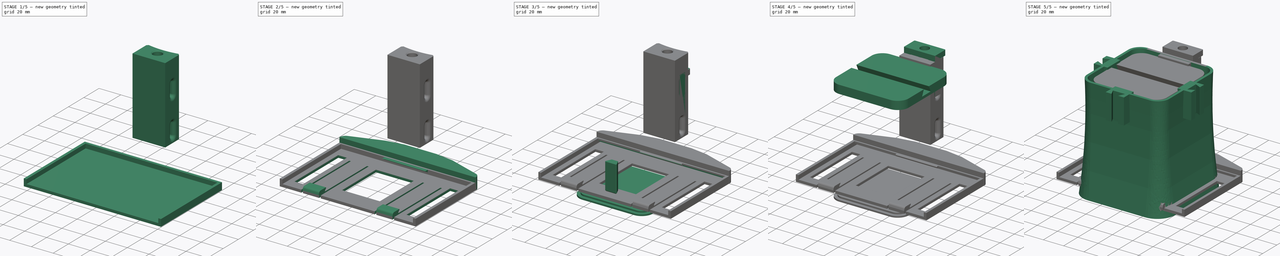
[diagram: build sequence overview — one tinted view per stage of 5, left to right]
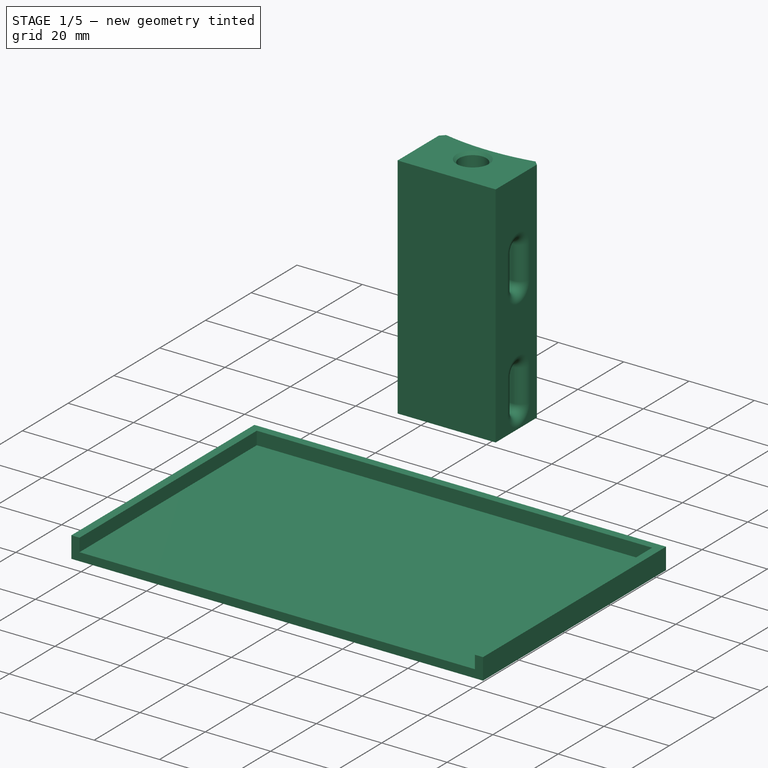
[diagram: stage 1 of 5 — iso view after this stage's code; geometry added in this stage tinted green]
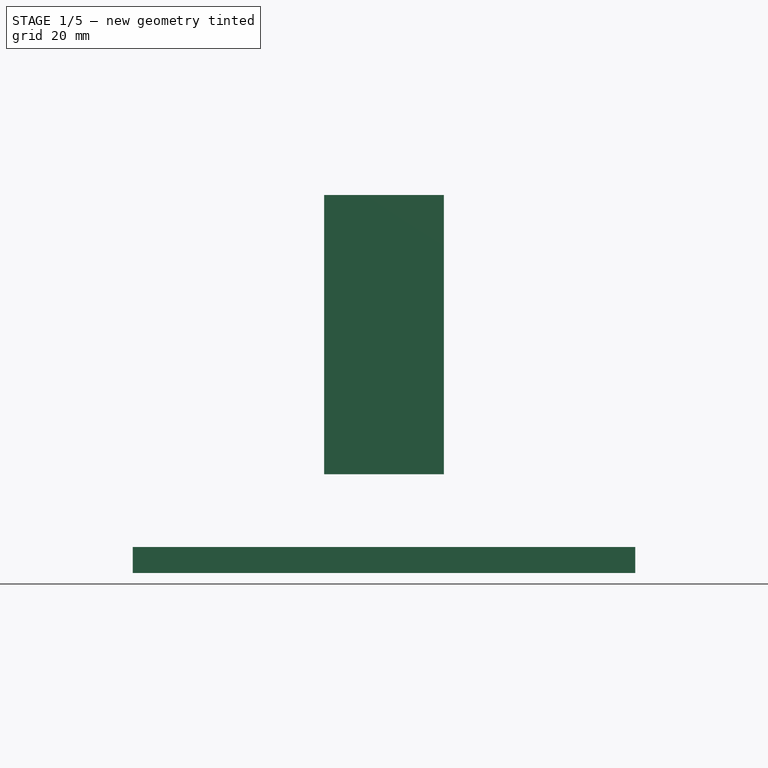
[diagram: stage 1 of 5 — front view after this stage's code; geometry added in this stage tinted green]
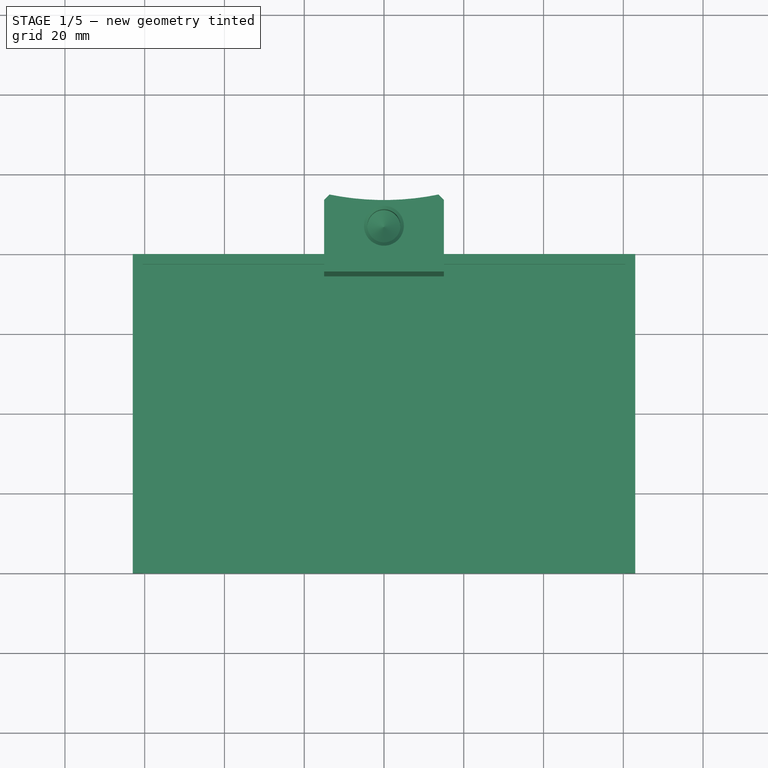
[diagram: stage 1 of 5 — top view after this stage's code; geometry added in this stage tinted green]
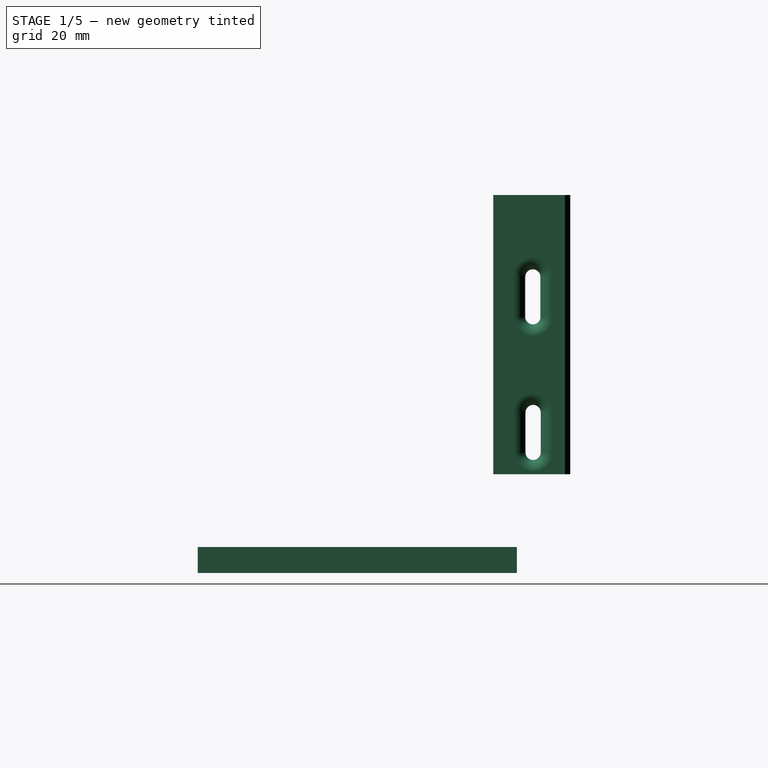
[diagram: stage 1 of 5 — right view after this stage's code; geometry added in this stage tinted green]
FCSTD DOCUMENT  (FreeCAD 1.0R39109 (Git))
Label: Housing-Field-Sensor-Fixed-Solar-Holder
Comment: Smart Farming Soil Monitoring System\nCopyright (C) 2024 Smart Farming gGmbH\n\nThis hardware design is released under the CERN Open Hardware License (CERN OHL).\nYou are free to use, modify, and dist... (+281 chars)
License: All rights reserved
LicenseURL: https://ohwr.org/project/cernohl/wikis/home
objects: Sketcher::SketchObject×41, PartDesign::Fillet×22, PartDesign::Plane×21, PartDesign::Pad×18, PartDesign::Pocket×14, PartDesign::Body×13, PartDesign::PolarPattern×4, PartDesign::Hole×4, PartDesign::Chamfer×4, PartDesign::Thickness×3, Part::Fillet×3, Part::Feature×2, PartDesign::ShapeBinder×2, Part::Cylinder×2, Part::MultiFuse×2, Part::Cut×2, PartDesign::AdditiveLoft×1, App::Part×1, Part::FeaturePython×1, Part::MultiCommon×1
note: 337 computed .brp shape members not serialized (recipe doc carries the construction recipe); baked Part::Feature solids carry a one-line shape summary decoded from their .brp

FEATURE [Sketcher::SketchObject] Sketch014
  ArcFitTolerance = 0
  AttachmentOffset = pos=(0,-74,0) rot=(0,0,1;0rad)
  AttachmentSupport = -> [XY_Plane012]
  FullyConstrained = true
  MakeInternals = false
  MapMode = 5
  Placement = pos=(0,-74,0) rot=(0,0,1;0rad)
  sketch-geometry (4):
    g0: LineSegment StartX=-3 StartY=48.0429 StartZ=0 EndX=-5.75 EndY=42.0429 EndZ=0
    g1: LineSegment StartX=-5.75 StartY=42.0429 StartZ=0 EndX=5.75 EndY=42.0429 EndZ=0
    g2: LineSegment StartX=5.75 StartY=42.0429 StartZ=0 EndX=3 EndY=48.0429 EndZ=0
    g3: LineSegment StartX=3 StartY=48.0429 StartZ=0 EndX=-3 EndY=48.0429 EndZ=0
  constraints (11):
    c: Coincident(g0,g1)
    c: Horizontal(g1)
    c: Coincident(g1,g2)
    c: Coincident(g2,g3)
    c: Coincident(g3,g0)
    c: DistanceX(g0,g2) = 6
    c: DistanceY(g0,g0) = 6
    c: Symmetric(g0,g2,g-2)
    c: Equal(g0,g2)
    c: DistanceX(g0,g1) = 11.5
    c: Block(g3)
FEATURE [Sketcher::SketchObject] Sketch015
  ArcFitTolerance = 1e-06
  AttachmentSupport = -> [XY_Plane013]
  FullyConstrained = true
  MakeInternals = false
  MapMode = 5
  sketch-geometry (5):
    g0: LineSegment StartX=-60.5 StartY=37.5 StartZ=0 EndX=-60.5 EndY=-37.5 EndZ=0
    g1: LineSegment StartX=-60.5 StartY=-37.5 StartZ=0 EndX=60.5 EndY=-37.5 EndZ=0
    g2: LineSegment StartX=60.5 StartY=-37.5 StartZ=0 EndX=60.5 EndY=37.5 EndZ=0
    g3: LineSegment StartX=60.5 StartY=37.5 StartZ=0 EndX=-60.5 EndY=37.5 EndZ=0
    g4: GeomPoint [constr] X=0 Y=0 Z=0
  constraints (12):
    c: Coincident(g0,g1)
    c: Coincident(g1,g2)
    c: Coincident(g2,g3)
    c: Coincident(g3,g0)
    c: Vertical(g0)
    c: Vertical(g2)
    c: Horizontal(g1)
    c: Horizontal(g3)
    c: Symmetric(g2,g0,g4)
    c: Coincident(g4,g-1)
    c: DistanceX(g0,g2) = 121
    c: DistanceY(g0,g0) = 75
FEATURE [PartDesign::Pad] Pad009
  Direction = (0,0,1)
  Length = 4
  Length2 = 10
  Profile = -> Sketch015
  ReferenceAxis = -> Sketch015 [N_Axis]
  Refine = true
  Suppressed = false
  Type = 0
FEATURE [PartDesign::Thickness] Thickness002
  Base = -> Pad009 [Face6]
  BaseFeature = -> Pad009
  Intersection = false
  Join = 1
  Mode = 0
  Refine = true
  SupportTransform = false
  Suppressed = false
  Value = 2.5
FEATURE [PartDesign::Plane] DatumPlane012
  AttachmentSupport = -> [Thickness002]
  Length = 141.981
  MapMode = 5
  Placement = pos=(0,-40,0) rot=(1,0,0;1.5708rad)
  ResizeMode = 0
  Width = 65.8808
FEATURE [Sketcher::SketchObject] Sketch016  label="Sketch016_CutFront"
  ArcFitTolerance = 1e-06
  AttachmentSupport = -> [DatumPlane012]
  FullyConstrained = true
  MakeInternals = false
  MapMode = 5
  Placement = pos=(0,-40,0) rot=(1,0,0;1.5708rad)
  sketch-geometry (5):
    g0: GeomPoint [constr] X=0 Y=0 Z=0
    g1: LineSegment StartX=-60.5 StartY=8 StartZ=0 EndX=-60.5 EndY=0 EndZ=0
    g2: LineSegment StartX=-60.5 StartY=0 StartZ=0 EndX=60.5 EndY=0 EndZ=0
    g3: LineSegment StartX=60.5 StartY=0 StartZ=0 EndX=60.5 EndY=8 EndZ=0
    g4: LineSegment StartX=60.5 StartY=8 StartZ=0 EndX=-60.5 EndY=8 EndZ=0
  constraints (12):
    c: Coincident(g0,g-1)
    c: Coincident(g1,g2)
    c: Coincident(g2,g3)
    c: Coincident(g3,g4)
    c: Coincident(g4,g1)
    c: Vertical(g1)
    c: Vertical(g3)
    c: Horizontal(g2)
    c: Horizontal(g4)
    c: DistanceX(g4,g4) = 121
    c: DistanceY(g1,g1) = 8
    c: Symmetric(g1,g2,g0)
FEATURE [PartDesign::Pocket] Pocket004  label="Pocket004_CutFront"
  BaseFeature = -> Thickness002
  Direction = (0,1,-2e-16)
  Length = 5
  Length2 = 5
  Profile = -> Sketch016
  ReferenceAxis = -> Sketch016 [N_Axis]
  Refine = true
  Suppressed = false
  Type = 0
FEATURE [Sketcher::SketchObject] Sketch017  label="Sketch017_CutLeftEdge"
  ArcFitTolerance = 1e-06
  AttachmentSupport = -> [DatumPlane012]
  FullyConstrained = true
  MakeInternals = false
  MapMode = 5
  Placement = pos=(0,-40,0) rot=(1,0,0;1.5708rad)
  sketch-geometry (3):
    g0: LineSegment StartX=-57.4525 StartY=3 StartZ=0 EndX=-60.25 EndY=0 EndZ=0
    g1: LineSegment StartX=-60.25 StartY=0 StartZ=0 EndX=-57.4525 EndY=0 EndZ=0
    g2: LineSegment StartX=-57.4525 StartY=0 StartZ=0 EndX=-57.4525 EndY=3 EndZ=0
  constraints (9):
    c: PointOnObject(g0,g-1)
    c: Coincident(g0,g1)
    c: PointOnObject(g1,g-1)
    c: Coincident(g1,g2)
    c: Coincident(g2,g0)
    c: Vertical(g2)
    c: Angle(g1,g0) = 0.820305
    c: DistanceY(g1,g0) = 3
    c: DistanceX(g0,g-1) = 60.25
FEATURE [PartDesign::Pocket] Pocket005  label="Pocket005_CutLeftEdge"
  BaseFeature = -> Pocket004
  Direction = (0,1,-2e-16)
  Length = 77.5
  Length2 = 5
  Profile = -> Sketch017
  ReferenceAxis = -> Sketch017 [N_Axis]
  Refine = true
  Suppressed = false
  Type = 0
FEATURE [PartDesign::Body] Body006  label="SolarHolder"
  AllowCompound = false
  Group = -> [Sketch015,Pad009,Thickness002,DatumPlane012,Sketch016,Pocket004,Sketch017,Pocket005,Sketch018,Pocket006,Sketch019,Pocket007,Sketch020,Pad010,Sketch021,DatumPlane013,Sketch022,Pocket008,Sketch023,Pocket009,Sketch024,Pocket010,Sketch025,Pocket011,Sketch026,Pad011,Sketch027,Pad012,Fillet008,Fillet009,Fillet010,Fillet011,Fillet012,Sketch028,Pad013,DatumPlane016,Sketch031,Hole,DatumPlane018,Sketch038,+4 more]
  Origin = -> Origin010
  Placement = pos=(0,0,108) rot=(0,0,1;0rad)
  Tip = -> Fillet042
FEATURE [Sketcher::SketchObject] Sketch039
  ArcFitTolerance = 1e-06
  AttachmentSupport = -> [XY_Plane016]
  FullyConstrained = true
  MakeInternals = false
  MapMode = 5
  sketch-geometry (5):
    g0: LineSegment StartX=-15 StartY=54.0734 StartZ=0 EndX=-15 EndY=34.0734 EndZ=0
    g1: LineSegment StartX=-15 StartY=34.0734 StartZ=0 EndX=15 EndY=34.0734 EndZ=0
    g2: LineSegment StartX=15 StartY=34.0734 StartZ=0 EndX=15 EndY=54.0734 EndZ=0
    g3: LineSegment StartX=15 StartY=54.0734 StartZ=0 EndX=-15 EndY=54.0734 EndZ=0
    g4: GeomPoint [constr] X=0 Y=44.0734 Z=0
  constraints (13):
    c: Coincident(g0,g1)
    c: Coincident(g1,g2)
    c: Coincident(g2,g3)
    c: Coincident(g3,g0)
    c: Vertical(g0)
    c: Vertical(g2)
    c: Horizontal(g1)
    c: Horizontal(g3)
    c: Symmetric(g2,g0,g4)
    c: PointOnObject(g4,g-2)
    c: DistanceX(g3,g3) = 30
    c: DistanceY(g0,g0) = 20
    c: Block(g2)
FEATURE [PartDesign::Pad] Pad018
  Direction = (0,0,1)
  Length = 70
  Length2 = 10
  Profile = -> Sketch039
  ReferenceAxis = -> Sketch039 [N_Axis]
  Refine = true
  Suppressed = false
  Type = 0
FEATURE [PartDesign::Plane] DatumPlane019  label="DatumPlane019_Hole_SolarHolder"
  AttachmentSupport = -> [Pad018]
  Length = 62.5756
  MapMode = 5
  Placement = pos=(0,0,70) rot=(0,0,1;0rad)
  ResizeMode = 0
  Width = 91.649
FEATURE [Sketcher::SketchObject] Sketch041
  ArcFitTolerance = 1e-06
  AttachmentOffset = pos=(0,1.5,0) rot=(0,0,1;0rad)
  AttachmentSupport = -> [DatumPlane019]
  FullyConstrained = true
  MakeInternals = false
  MapMode = 5
  Placement = pos=(0,1.5,70) rot=(0,0,1;0rad)
  sketch-geometry (3):
    g0: LineSegment [constr] StartX=-15.0074 StartY=54.0428 StartZ=0 EndX=14.9099 EndY=34.1115 EndZ=0
    g1: LineSegment [constr] StartX=14.9376 StartY=54.0459 StartZ=0 EndX=-14.9891 EndY=34.0576 EndZ=0
    g2: Circle CenterX=-0.02572 CenterY=44.0518 CenterZ=0 NormalX=0 NormalY=0 NormalZ=1 AngleXU=0 Radius=4.15
  constraints (4):
    c: Block(g1)
    c: Block(g0)
    c: Symmetric(g1,g1,g2)
    c: Diameter(g2) = 8.3
FEATURE [PartDesign::Hole] Hole003  label="Hole003_ThreadedInsert"
  BaseFeature = -> Pad018
  CustomThreadClearance = 0
  Depth = 14
  DepthType = 0
  Diameter = 8.3
  DrillForDepth = false
  DrillPoint = 1
  DrillPointAngle = 110
  HoleCutCountersinkAngle = 90
  HoleCutCustomValues = false
  HoleCutDepth = 0
  HoleCutDiameter = 10
  HoleCutType = 2
  ModelThread = false
  Profile = -> Sketch041
  Refine = true
  Suppressed = false
  Tapered = false
  TaperedAngle = 90
  ThreadClass = 0
  ThreadDepth = 14
  ThreadDepthType = 0
  ThreadDirection = 0
  ThreadFit = 0
  ThreadSize = 0
  ThreadType = 0
  Threaded = false
  UseCustomThreadClearance = false
FEATURE [PartDesign::Plane] DatumPlane020  label="DatumPlane020_HousingFastening"
  AttachmentSupport = -> [Hole003]
  Length = 96.4077
  MapMode = 5
  Placement = pos=(15,0,0) rot=(0.57735,0.57735,0.57735;2.0944rad)
  ResizeMode = 0
  Width = 112.334
FEATURE [Sketcher::SketchObject] Sketch042  label="Sketch042_HousingFastening"
  ArcFitTolerance = 1e-06
  AttachmentSupport = -> [DatumPlane020]
  FullyConstrained = false
  MakeInternals = false
  MapMode = 5
  Placement = pos=(15,0,0) rot=(0.57735,0.57735,0.57735;2.0944rad)
  sketch-geometry (8):
    g0: ArcOfCircle CenterX=44.0147 CenterY=49.4776 CenterZ=0 NormalX=0 NormalY=0 NormalZ=1 AngleXU=0 Radius=1.9 StartAngle=1.1e-15 EndAngle=3.14159
    g1: ArcOfCircle CenterX=44.0147 CenterY=39.4776 CenterZ=0 NormalX=0 NormalY=0 NormalZ=1 AngleXU=0 Radius=1.9 StartAngle=3.14159 EndAngle=6.28319
    g2: LineSegment StartX=45.9147 StartY=49.4776 StartZ=0 EndX=45.9147 EndY=39.4776 EndZ=0
    g3: LineSegment StartX=42.1147 StartY=49.4776 StartZ=0 EndX=42.1147 EndY=39.4776 EndZ=0
    g4: ArcOfCircle CenterX=44.0855 CenterY=15.4776 CenterZ=0 NormalX=0 NormalY=0 NormalZ=1 AngleXU=0 Radius=1.9 StartAngle=3e-16 EndAngle=3.14159
    g5: ArcOfCircle CenterX=44.0855 CenterY=5.47763 CenterZ=0 NormalX=0 NormalY=0 NormalZ=1 AngleXU=0 Radius=1.9 StartAngle=3.14159 EndAngle=6.28319
    g6: LineSegment StartX=45.9855 StartY=15.4776 StartZ=0 EndX=45.9855 EndY=5.47763 EndZ=0
    g7: LineSegment StartX=42.1855 StartY=15.4776 StartZ=0 EndX=42.1855 EndY=5.47763 EndZ=0
  constraints (18):
    c: Tangent(g0,g2) = 1.5708
    c: Tangent(g0,g3) = -1.5708
    c: Tangent(g1,g2) = 1.5708
    c: Tangent(g1,g3) = -1.5708
    c: Equal(g0,g1)
    c: Vertical(g3)
    c: DistanceX(g0,g0) = 3.8
    c: DistanceY(g1,g0) = 10
    c: Tangent(g4,g6) = 1.5708
    c: Tangent(g4,g7) = -1.5708
    c: Tangent(g5,g6) = 1.5708
    c: Tangent(g5,g7) = -1.5708
    c: Equal(g4,g5)
    c: Vertical(g7)
    c: DistanceX(g4,g4) = 3.8
    c: DistanceY(g5,g4) = 10
    c: DistanceY(g4,g1) = 24
    c: Block(g0)
FEATURE [PartDesign::Pocket] Pocket013  label="Pocket013_HousingFastening"
  BaseFeature = -> Hole003
  Direction = (-1,0,0)
  Length = 31
  Length2 = 5
  Profile = -> Sketch042
  ReferenceAxis = -> Sketch042 [N_Axis]
  Refine = true
  Suppressed = false
  Type = 1
FEATURE [PartDesign::Fillet] Fillet043
  Base = -> Pocket013 [Edge8]
  BaseFeature = -> Pocket013
  Radius = 3
  Refine = true
  SupportTransform = false
  Suppressed = false
  UseAllEdges = false
FEATURE [PartDesign::Fillet] Fillet044
  Base = -> Fillet043 [Edge12]
  BaseFeature = -> Fillet043
  Radius = 3
  Refine = true
  SupportTransform = false
  Suppressed = false
  UseAllEdges = false
FEATURE [Part::Cylinder] Cylinder001  label="Zylinder001"
  Angle = 360
  AttacherType = Attacher::AttachEngine3D
  FirstAngle = 0
  Height = 75
  Placement = pos=(0,120,19) rot=(0,0,1;0rad)
  Radius = 68
  SecondAngle = 0
FEATURE [Part::MultiCommon] Common
  Refine = true
  Shapes = -> [Cylinder001]
FEATURE [PartDesign::Fillet] Fillet045
  Base = -> Fillet044 [Edge47]
  BaseFeature = -> Fillet044
  Radius = 3
  Refine = true
  SupportTransform = false
  Suppressed = false
  UseAllEdges = false
FEATURE [PartDesign::Fillet] Fillet046
  Base = -> Fillet045 [Edge30]
  BaseFeature = -> Fillet045
  Radius = 3
  Refine = true
  SupportTransform = false
  Suppressed = false
  UseAllEdges = false
FEATURE [PartDesign::Chamfer] Chamfer
  Angle = 45
  Base = -> Fillet046 [Edge12]
  BaseFeature = -> Fillet046
  ChamferType = 0
  FlipDirection = false
  Refine = true
  Size = 2
  Size2 = 1
  SupportTransform = false
  Suppressed = false
  UseAllEdges = false
FEATURE [PartDesign::Chamfer] Chamfer006
  Angle = 45
  Base = -> Chamfer [Edge40]
  BaseFeature = -> Chamfer
  ChamferType = 0
  FlipDirection = false
  Refine = true
  Size = 2
  Size2 = 1
  SupportTransform = false
  Suppressed = false
  UseAllEdges = false
FEATURE [PartDesign::Body] Body009  label="Housing_Holder"
  AllowCompound = false
  Group = -> [Sketch039,Pad018,DatumPlane019,Sketch041,Hole003,DatumPlane020,Sketch042,Pocket013,Fillet043,Fillet044,Fillet045,Fillet046,Chamfer,Chamfer006]
  Origin = -> Origin013
  Placement = pos=(0,0,22.25) rot=(0,0,1;0rad)
  Tip = -> Chamfer006
FEATURE [Part::Cut] Cut001  label="Cut001_HousingHolder"
  Base = -> Body009
  Refine = true
  Tool = -> Common
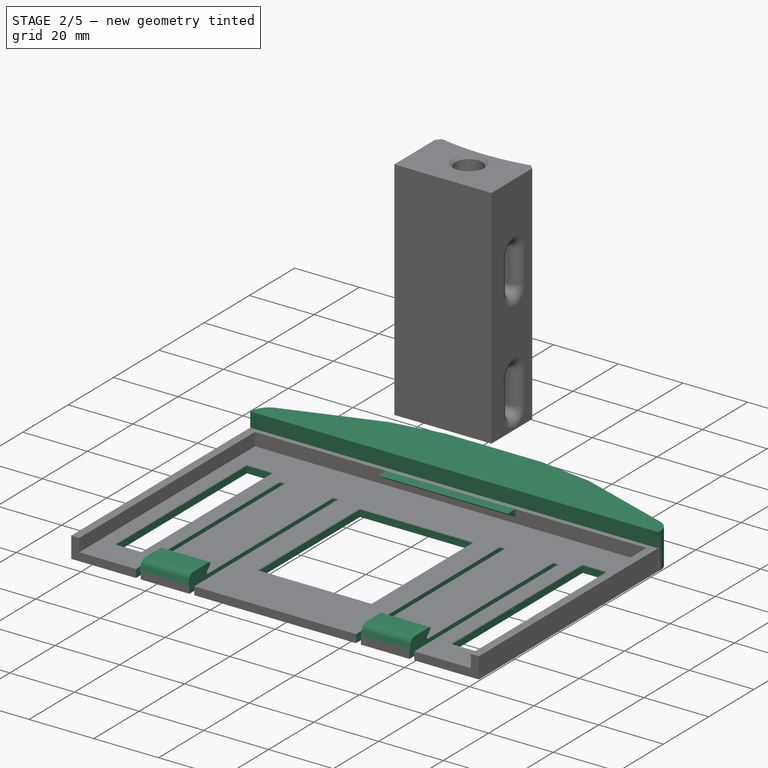
[diagram: stage 2 of 5 — iso view after this stage's code; geometry added in this stage tinted green]
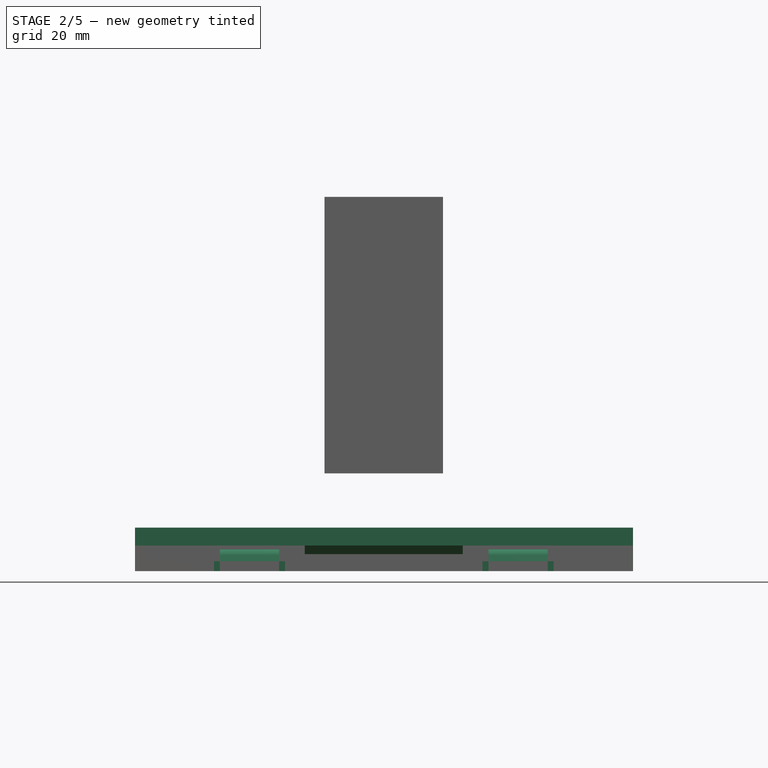
[diagram: stage 2 of 5 — front view after this stage's code; geometry added in this stage tinted green]
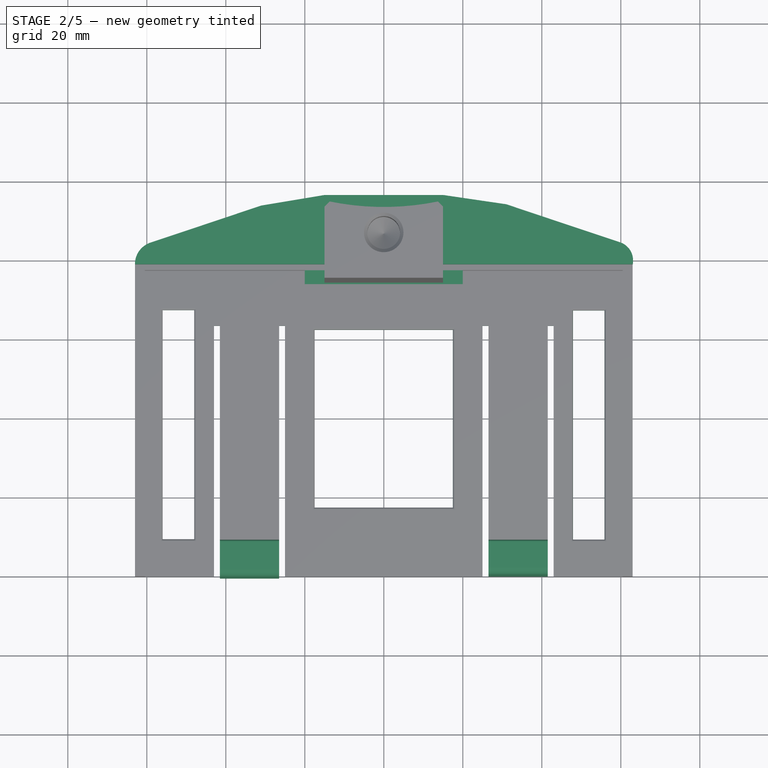
[diagram: stage 2 of 5 — top view after this stage's code; geometry added in this stage tinted green]
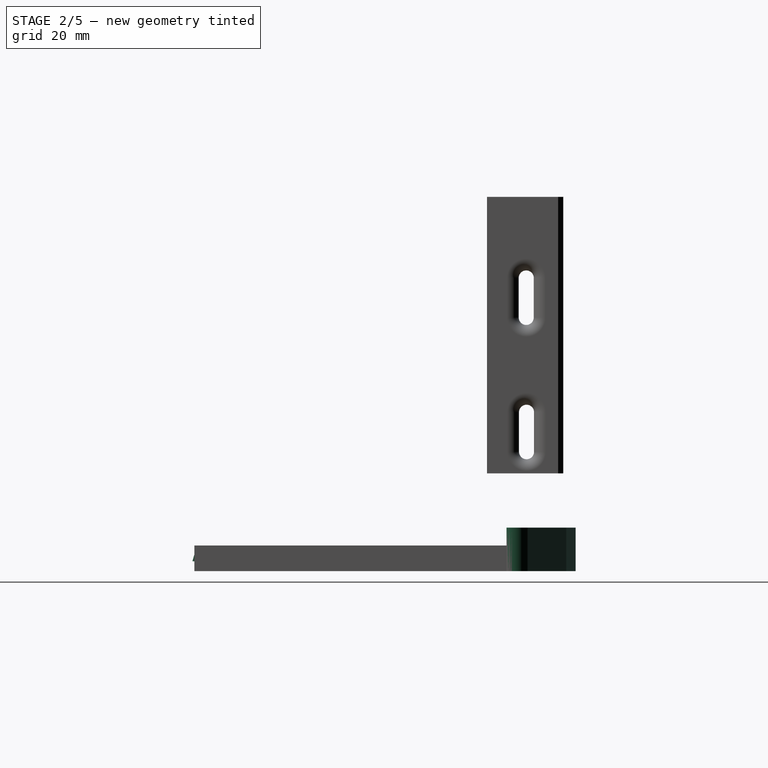
[diagram: stage 2 of 5 — right view after this stage's code; geometry added in this stage tinted green]
FEATURE [Sketcher::SketchObject] Sketch018  label="Sketch018_CutRightEdge"
  ArcFitTolerance = 1e-06
  AttachmentSupport = -> [DatumPlane012]
  FullyConstrained = true
  MakeInternals = false
  MapMode = 5
  Placement = pos=(0,-40,0) rot=(1,0,0;1.5708rad)
  sketch-geometry (3):
    g0: LineSegment StartX=57.7327 StartY=3 StartZ=0 EndX=60.25 EndY=0 EndZ=0
    g1: LineSegment StartX=60.25 StartY=0 StartZ=0 EndX=57.7327 EndY=0 EndZ=0
    g2: LineSegment StartX=57.7327 StartY=0 StartZ=0 EndX=57.7327 EndY=3 EndZ=0
  constraints (9):
    c: Coincident(g0,g1)
    c: PointOnObject(g1,g-1)
    c: Horizontal(g1)
    c: Coincident(g1,g2)
    c: Coincident(g2,g0)
    c: Vertical(g2)
    c: Angle(g0,g1) = 0.872665
    c: DistanceY(g1,g0) = 3
    c: DistanceX(g-1,g0) = 60.25
FEATURE [PartDesign::Pocket] Pocket006  label="Pocket006_CutRightEdge"
  BaseFeature = -> Pocket005
  Direction = (0,1,-2e-16)
  Length = 77.5
  Length2 = 5
  Profile = -> Sketch018
  ReferenceAxis = -> Sketch018 [N_Axis]
  Refine = true
  Suppressed = false
  Type = 0
FEATURE [Sketcher::SketchObject] Sketch019  label="Sketch019_RecessBottom"
  ArcFitTolerance = 1e-06
  AttachmentSupport = -> [XY_Plane013]
  FullyConstrained = true
  MakeInternals = false
  MapMode = 5
  sketch-geometry (5):
    g0: LineSegment StartX=-17.5 StartY=22.5 StartZ=0 EndX=-17.5 EndY=-22.5 EndZ=0
    g1: LineSegment StartX=-17.5 StartY=-22.5 StartZ=0 EndX=17.5 EndY=-22.5 EndZ=0
    g2: LineSegment StartX=17.5 StartY=-22.5 StartZ=0 EndX=17.5 EndY=22.5 EndZ=0
    g3: LineSegment StartX=17.5 StartY=22.5 StartZ=0 EndX=-17.5 EndY=22.5 EndZ=0
    g4: GeomPoint [constr] X=0 Y=0 Z=0
  constraints (12):
    c: Coincident(g0,g1)
    c: Coincident(g1,g2)
    c: Coincident(g2,g3)
    c: Coincident(g3,g0)
    c: Vertical(g0)
    c: Vertical(g2)
    c: Horizontal(g1)
    c: Horizontal(g3)
    c: Symmetric(g2,g0,g4)
    c: Coincident(g4,g-1)
    c: DistanceX(g0,g2) = 35
    c: DistanceY(g0,g0) = 45
FEATURE [PartDesign::Pocket] Pocket007  label="Pocket007_RecessBottom"
  BaseFeature = -> Pocket006
  Direction = (0,0,-1)
  Length = 5
  Length2 = 5
  Profile = -> Sketch019
  ReferenceAxis = -> Sketch019 [N_Axis]
  Refine = true
  Suppressed = false
  Type = 0
FEATURE [Sketcher::SketchObject] Sketch020
  ArcFitTolerance = 1e-06
  AttachmentOffset = pos=(0,1.5,0) rot=(0,0,1;0rad)
  AttachmentSupport = -> [YZ_Plane010]
  FullyConstrained = true
  MakeInternals = false
  MapMode = 5
  Placement = pos=(0,0,1.5) rot=(0.57735,0.57735,0.57735;2.0944rad)
  sketch-geometry (3):
    g0: LineSegment StartX=38 StartY=2.5 StartZ=0 EndX=34 EndY=2.5 EndZ=0
    g1: LineSegment StartX=34 StartY=2.5 StartZ=0 EndX=38 EndY=0 EndZ=0
    g2: LineSegment StartX=38 StartY=0 StartZ=0 EndX=38 EndY=2.5 EndZ=0
  constraints (9):
    c: Horizontal(g0)
    c: Coincident(g0,g1)
    c: PointOnObject(g1,g-1)
    c: Coincident(g1,g2)
    c: Coincident(g2,g0)
    c: Angle(g0,g2) = 1.5708
    c: DistanceX(g0,g1) = 4
    c: DistanceY(g1,g0) = 2.5
    c: DistanceX(g-1,g1) = 38
FEATURE [PartDesign::Pad] Pad010  label="Pad010_EdgeBackside"
  BaseFeature = -> Pocket007
  Direction = (1,0,0)
  Length = 40
  Length2 = 10
  Midplane = true
  Profile = -> Sketch020
  ReferenceAxis = -> Sketch020 [N_Axis]
  Refine = true
  Suppressed = false
  Type = 0
FEATURE [Sketcher::SketchObject] Sketch021  label="Sketch021_Slices"
  ArcFitTolerance = 1e-06
  AttachmentSupport = -> [XY_Plane013]
  FullyConstrained = true
  MakeInternals = false
  MapMode = 5
FEATURE [PartDesign::Plane] DatumPlane013  label="DatumPlane013_CutClip"
  AttachmentOffset = pos=(0,0,79) rot=(0,0,1;0rad)
  Length = 141.981
  MapMode = 4
  Placement = pos=(0,-41.5,1.75e-14) rot=(1,0,0;1.5708rad)
  ResizeMode = 0
  Width = 65.8808
FEATURE [Sketcher::SketchObject] Sketch022
  ArcFitTolerance = 1e-06
  AttachmentSupport = -> [DatumPlane013]
  FullyConstrained = true
  MakeInternals = false
  MapMode = 5
  Placement = pos=(0,-41.5,1.75e-14) rot=(1,0,0;1.5708rad)
  sketch-geometry (8):
    g0: LineSegment StartX=-43 StartY=5 StartZ=0 EndX=-43 EndY=-5 EndZ=0
    g1: LineSegment StartX=-43 StartY=-5 StartZ=0 EndX=-41.5 EndY=-5 EndZ=0
    g2: LineSegment StartX=-41.5 StartY=-5 StartZ=0 EndX=-41.5 EndY=2.99286 EndZ=0
    g3: LineSegment StartX=-41.5 StartY=2.99286 StartZ=0 EndX=-26.5 EndY=2.99286 EndZ=0
    g4: LineSegment StartX=-26.5 StartY=2.99286 StartZ=0 EndX=-26.5 EndY=-5 EndZ=0
    g5: LineSegment StartX=-26.5 StartY=-5 StartZ=0 EndX=-25 EndY=-5 EndZ=0
    g6: LineSegment StartX=-25 StartY=-5 StartZ=0 EndX=-25 EndY=5 EndZ=0
    g7: LineSegment StartX=-25 StartY=5 StartZ=0 EndX=-43 EndY=5 EndZ=0
  constraints (24):
    c: Vertical(g0)
    c: Coincident(g0,g1)
    c: Horizontal(g1)
    c: Coincident(g1,g2)
    c: Vertical(g2)
    c: Coincident(g2,g3)
    c: Horizontal(g3)
    c: Coincident(g3,g4)
    c: Vertical(g4)
    c: Coincident(g4,g5)
    c: Coincident(g5,g6)
    c: Vertical(g6)
    c: Coincident(g6,g7)
    c: Coincident(g7,g0)
    c: Horizontal(g7)
    c: DistanceX(g0,g6) = 18
    c: Equal(g2,g4)
    c: Equal(g0,g6)
    c: DistanceX(g0,g1) = 1.5
    c: Equal(g1,g5)
    c: Equal(g6,g0)
    c: DistanceY(g5,g6) = 10
    c: DistanceY(g5,g-1) = 5
    c: DistanceX(g5,g-1) = 25
FEATURE [PartDesign::Pocket] Pocket008  label="Pocket008_CutClipLeft"
  BaseFeature = -> Pad010
  Direction = (0,1,-2e-16)
  Length = 65
  Length2 = 5
  Profile = -> Sketch022
  ReferenceAxis = -> Sketch022 [N_Axis]
  Refine = true
  Suppressed = false
  Type = 0
FEATURE [Sketcher::SketchObject] Sketch023  label="Sketch023_CutClipRight"
  ArcFitTolerance = 1e-06
  AttachmentSupport = -> [DatumPlane013]
  FullyConstrained = true
  MakeInternals = false
  MapMode = 5
  Placement = pos=(0,-41.5,1.75e-14) rot=(1,0,0;1.5708rad)
  sketch-geometry (8):
    g0: LineSegment StartX=25 StartY=5 StartZ=0 EndX=25 EndY=-5 EndZ=0
    g1: LineSegment StartX=25 StartY=-5 StartZ=0 EndX=26.5 EndY=-5 EndZ=0
    g2: LineSegment StartX=26.5 StartY=-5 StartZ=0 EndX=26.5 EndY=2.99286 EndZ=0
    g3: LineSegment StartX=26.5 StartY=2.99286 StartZ=0 EndX=41.5 EndY=2.99286 EndZ=0
    g4: LineSegment StartX=41.5 StartY=2.99286 StartZ=0 EndX=41.5 EndY=-5 EndZ=0
    g5: LineSegment StartX=41.5 StartY=-5 StartZ=0 EndX=43 EndY=-5 EndZ=0
    g6: LineSegment StartX=43 StartY=-5 StartZ=0 EndX=43 EndY=5 EndZ=0
    g7: LineSegment StartX=43 StartY=5 StartZ=0 EndX=25 EndY=5 EndZ=0
  constraints (24):
    c: Vertical(g0)
    c: Coincident(g0,g1)
    c: Horizontal(g1)
    c: Coincident(g1,g2)
    c: Vertical(g2)
    c: Coincident(g2,g3)
    c: Horizontal(g3)
    c: Coincident(g3,g4)
    c: Vertical(g4)
    c: Coincident(g4,g5)
    c: Coincident(g5,g6)
    c: Vertical(g6)
    c: Coincident(g6,g7)
    c: Coincident(g7,g0)
    c: Horizontal(g7)
    c: DistanceX(g0,g6) = 18
    c: Equal(g2,g4)
    c: Equal(g0,g6)
    c: DistanceX(g0,g1) = 1.5
    c: Equal(g1,g5)
    c: Equal(g6,g0)
    c: DistanceY(g5,g6) = 10
    c: DistanceY(g5,g-1) = 5
    c: DistanceX(g-1,g0) = 25
FEATURE [PartDesign::Pocket] Pocket009  label="Pocket009_CutClipRight"
  BaseFeature = -> Pocket008
  Direction = (0,1,-2e-16)
  Length = 65
  Length2 = 5
  Profile = -> Sketch023
  ReferenceAxis = -> Sketch023 [N_Axis]
  Refine = true
  Suppressed = false
  Type = 0
FEATURE [Sketcher::SketchObject] Sketch024  label="Sketch024_RecessLeft"
  ArcFitTolerance = 1e-06
  AttachmentSupport = -> [XY_Plane013]
  FullyConstrained = true
  MakeInternals = false
  MapMode = 5
  sketch-geometry (6):
    g0: LineSegment StartX=-55.9856 StartY=27.4852 StartZ=0 EndX=-55.9856 EndY=-30.5148 EndZ=0
    g1: LineSegment StartX=-55.9856 StartY=-30.5148 StartZ=0 EndX=-47.9856 EndY=-30.5148 EndZ=0
    g2: LineSegment StartX=-47.9856 StartY=-30.5148 StartZ=0 EndX=-47.9856 EndY=27.4852 EndZ=0
    g3: LineSegment StartX=-47.9856 StartY=27.4852 StartZ=0 EndX=-55.9856 EndY=27.4852 EndZ=0
    g4: LineSegment [constr] StartX=-58.9856 StartY=37.4852 StartZ=0 EndX=59.0523 EndY=37.4852 EndZ=0
    g5: LineSegment [constr] StartX=-58.9856 StartY=37.4852 StartZ=0 EndX=-58.9856 EndY=32.2613 EndZ=0
  constraints (17):
    c: Coincident(g0,g1)
    c: Coincident(g1,g2)
    c: Coincident(g2,g3)
    c: Coincident(g3,g0)
    c: Vertical(g0)
    c: Vertical(g2)
    c: Horizontal(g1)
    c: Horizontal(g3)
    c: DistanceX(g0,g2) = 8
    c: DistanceY(g0,g0) = 58
    c: Horizontal(g4)
    c: Block(g4)
    c: Coincident(g5,g4)
    c: Vertical(g5)
    c: Block(g5)
    c: DistanceX(g5,g0) = 3
    c: DistanceY(g0,g4) = 10
FEATURE [PartDesign::Pocket] Pocket010  label="Pocket010_RecessLeft"
  BaseFeature = -> Pocket009
  Direction = (0,0,-1)
  Length = 5
  Length2 = 5
  Profile = -> Sketch024
  ReferenceAxis = -> Sketch024 [N_Axis]
  Refine = true
  Suppressed = false
  Type = 1
FEATURE [Sketcher::SketchObject] Sketch025  label="Sketch025_RecessRight"
  ArcFitTolerance = 1e-06
  AttachmentSupport = -> [XY_Plane013]
  FullyConstrained = true
  MakeInternals = false
  MapMode = 5
  sketch-geometry (6):
    g0: LineSegment StartX=47.8824 StartY=27.3971 StartZ=0 EndX=47.8824 EndY=-30.6029 EndZ=0
    g1: LineSegment StartX=47.8824 StartY=-30.6029 StartZ=0 EndX=55.8824 EndY=-30.6029 EndZ=0
    g2: LineSegment StartX=55.8824 StartY=-30.6029 StartZ=0 EndX=55.8824 EndY=27.3971 EndZ=0
    g3: LineSegment StartX=55.8824 StartY=27.3971 StartZ=0 EndX=47.8824 EndY=27.3971 EndZ=0
    g4: LineSegment [constr] StartX=58.8824 StartY=37.3971 StartZ=0 EndX=49.2365 EndY=37.3971 EndZ=0
    g5: LineSegment [constr] StartX=58.8824 StartY=37.3971 StartZ=0 EndX=58.8824 EndY=26.7367 EndZ=0
  constraints (17):
    c: Coincident(g0,g1)
    c: Coincident(g1,g2)
    c: Coincident(g2,g3)
    c: Coincident(g3,g0)
    c: Vertical(g0)
    c: Vertical(g2)
    c: Horizontal(g1)
    c: Horizontal(g3)
    c: DistanceX(g0,g2) = 8
    c: DistanceY(g0,g0) = 58
    c: DistanceX(g2,g4) = 3
    c: Horizontal(g4)
    c: Block(g4)
    c: Coincident(g5,g4)
    c: Vertical(g5)
    c: Block(g5)
    c: DistanceY(g0,g4) = 10
FEATURE [PartDesign::Pocket] Pocket011  label="Pocket011_RecessRight"
  BaseFeature = -> Pocket010
  Direction = (0,0,-1)
  Length = 5
  Length2 = 5
  Profile = -> Sketch025
  ReferenceAxis = -> Sketch025 [N_Axis]
  Refine = true
  Suppressed = false
  Type = 1
FEATURE [Sketcher::SketchObject] Sketch026  label="Sketch026_ClipLeft"
  ArcFitTolerance = 1e-06
  AttachmentOffset = pos=(0,0,-26.5) rot=(0,0,1;0rad)
  AttachmentSupport = -> [YZ_Plane010]
  FullyConstrained = true
  MakeInternals = false
  MapMode = 5
  Placement = pos=(-26.5,0,0) rot=(0.57735,0.57735,0.57735;2.0944rad)
  sketch-geometry (4):
    g0: LineSegment StartX=-40.5 StartY=0 StartZ=0 EndX=-39.6398 EndY=3 EndZ=0
    g1: LineSegment StartX=-39.6398 StartY=3 StartZ=0 EndX=-30 EndY=3 EndZ=0
    g2: LineSegment StartX=-30 StartY=3 StartZ=0 EndX=-33 EndY=0 EndZ=0
    g3: LineSegment StartX=-33 StartY=0 StartZ=0 EndX=-40.5 EndY=0 EndZ=0
  constraints (12):
    c: PointOnObject(g0,g-1)
    c: Coincident(g0,g1)
    c: Coincident(g1,g2)
    c: PointOnObject(g2,g-1)
    c: Coincident(g2,g3)
    c: Coincident(g3,g0)
    c: DistanceX(g0,g2) = 7.5
    c: DistanceY(g0,g0) = 3
    c: DistanceX(g2,g-1) = 33
    c: DistanceX(g2,g1) = 3
    c: DistanceY(g2,g1) = 3
    c: Angle(g0,g1) = 1.85005
FEATURE [PartDesign::Pad] Pad011  label="Pad011_ClipLeft"
  BaseFeature = -> Pocket011
  Direction = (1,0,0)
  Length = 15
  Length2 = 10
  Profile = -> Sketch026
  ReferenceAxis = -> Sketch026 [N_Axis]
  Refine = true
  Reversed = true
  Suppressed = false
  Type = 0
FEATURE [Sketcher::SketchObject] Sketch027  label="Sketch027_ClipRight"
  ArcFitTolerance = 1e-06
  AttachmentOffset = pos=(0,0,26.5) rot=(0,0,1;0rad)
  AttachmentSupport = -> [YZ_Plane010]
  FullyConstrained = true
  MakeInternals = false
  MapMode = 5
  Placement = pos=(26.5,0,0) rot=(0.57735,0.57735,0.57735;2.0944rad)
  sketch-geometry (4):
    g0: LineSegment StartX=-40 StartY=0 StartZ=0 EndX=-39.1398 EndY=3 EndZ=0
    g1: LineSegment StartX=-39.1398 StartY=3 StartZ=0 EndX=-30 EndY=3 EndZ=0
    g2: LineSegment StartX=-30 StartY=3 StartZ=0 EndX=-33 EndY=0 EndZ=0
    g3: LineSegment StartX=-33 StartY=0 StartZ=0 EndX=-40 EndY=0 EndZ=0
  constraints (12):
    c: PointOnObject(g0,g-1)
    c: Coincident(g0,g1)
    c: Coincident(g1,g2)
    c: PointOnObject(g2,g-1)
    c: Coincident(g2,g3)
    c: Coincident(g3,g0)
    c: DistanceX(g0,g2) = 7
    c: DistanceY(g0,g0) = 3
    c: DistanceX(g2,g-1) = 33
    c: DistanceX(g2,g1) = 3
    c: DistanceY(g2,g1) = 3
    c: Angle(g0,g1) = 1.85005
FEATURE [PartDesign::Pad] Pad012  label="Pad012_ClipRight"
  BaseFeature = -> Pad011
  Direction = (1,0,0)
  Length = 15
  Length2 = 10
  Profile = -> Sketch027
  ReferenceAxis = -> Sketch027 [N_Axis]
  Refine = true
  Suppressed = false
  Type = 0
FEATURE [PartDesign::Fillet] Fillet008
  Base = -> Pad012 [Edge109,Edge38]
  BaseFeature = -> Pad012
  Radius = 0.5
  Refine = true
  SupportTransform = false
  Suppressed = false
  UseAllEdges = false
FEATURE [PartDesign::Fillet] Fillet009
  Base = -> Fillet008 [Edge131]
  BaseFeature = -> Fillet008
  Radius = 2
  Refine = true
  SupportTransform = false
  Suppressed = false
  UseAllEdges = false
FEATURE [PartDesign::Fillet] Fillet010
  Base = -> Fillet009 [Edge145]
  BaseFeature = -> Fillet009
  Radius = 2
  Refine = true
  SupportTransform = false
  Suppressed = false
  UseAllEdges = false
FEATURE [PartDesign::Fillet] Fillet011
  Base = -> Fillet010 [Edge16,Edge48]
  BaseFeature = -> Fillet010
  Radius = 0.5
  Refine = true
  SupportTransform = false
  Suppressed = false
  UseAllEdges = false
FEATURE [PartDesign::Fillet] Fillet012
  Base = -> Fillet011 [Edge48,Edge49,Edge51,Edge50,Edge52,Edge53,Edge54,Edge55,Edge44,Edge45,Edge47,Edge46]
  BaseFeature = -> Fillet011
  Radius = 0.5
  Refine = true
  SupportTransform = false
  Suppressed = false
  UseAllEdges = false
FEATURE [Sketcher::SketchObject] Sketch028  label="Sketch028_TripodHolder"
  ArcFitTolerance = 1e-06
  AttachmentOffset = pos=(0,1.5,-2.5) rot=(0,0,1;0rad)
  AttachmentSupport = -> [XY_Plane013]
  FullyConstrained = true
  MakeInternals = false
  MapMode = 5
  Placement = pos=(0,1.5,-2.5) rot=(0,0,1;0rad)
  sketch-geometry (8):
    g0: ArcOfCircle CenterX=58.3259 CenterY=38.4725 CenterZ=0 NormalX=0 NormalY=0 NormalZ=1 AngleXU=0 Radius=4.77416 StartAngle=6.07804 EndAngle=7.5311
    g1: LineSegment StartX=63 StartY=37.5 StartZ=0 EndX=-63 EndY=37.5 EndZ=0
    g2: ArcOfCircle CenterX=-57.278 CenterY=37.5 CenterZ=0 NormalX=0 NormalY=0 NormalZ=1 AngleXU=0 Radius=5.72197 StartAngle=1.89368 EndAngle=3.14159
    g3: LineSegment StartX=-59.0936 StartY=42.9263 StartZ=0 EndX=-31 EndY=52.3263 EndZ=0
    g4: LineSegment StartX=-31 StartY=52.3263 StartZ=0 EndX=-15 EndY=55 EndZ=0
    g5: LineSegment StartX=-15 StartY=55 StartZ=0 EndX=15 EndY=55 EndZ=0
    g6: LineSegment StartX=15 StartY=55 StartZ=0 EndX=31 EndY=52.65 EndZ=0
    g7: LineSegment StartX=31 StartY=52.65 StartZ=0 EndX=59.8408 EndY=43 EndZ=0
  constraints (24):
    c: Coincident(g0,g1)
    c: Horizontal(g1)
    c: Perpendicular(g1,g2) = 1.5708
    c: Coincident(g3,g4)
    c: Coincident(g4,g5)
    c: Horizontal(g5)
    c: Coincident(g5,g6)
    c: Coincident(g6,g7)
    c: Coincident(g7,g0)
    c: DistanceX(g-1,g5) = 15
    c: DistanceX(g4,g-1) = 15
    c: DistanceX(g-1,g6) = 31
    c: DistanceX(g3,g-1) = 31
    c: DistanceY(g0,g6) = 9.65
    c: DistanceY(g2,g3) = 9.4
    c: DistanceX(g-1,g0) = 63
    c: DistanceX(g1,g-1) = 63
    c: DistanceY(g-1,g4) = 55
    c: DistanceY(g-1,g0) = 37.5
    c: Tangent(g2,g3) = 1.5708
    c: Tangent(g0,g7,g0) = 1.5708
    c: Angle(g1,g3) = 0.322886
    c: Angle(g7,g1) = 0.322886
    c: DistanceY(g0,g0) = 5.5
FEATURE [PartDesign::Pad] Pad013
  BaseFeature = -> Fillet012
  Direction = (0,0,1)
  Length = 11
  Length2 = 10
  Profile = -> Sketch028
  ReferenceAxis = -> Sketch028 [N_Axis]
  Refine = true
  Suppressed = false
  Type = 0
FEATURE [PartDesign::Plane] DatumPlane016  label="DatumPlane016_HoleSolarholder"
  AttachmentOffset = pos=(0,0,-1) rot=(0,0,1;0rad)
  AttachmentSupport = -> [Pad013]
  Length = 148.219
  MapMode = 5
  Placement = pos=(0,0,7.5) rot=(0,0,1;0rad)
  ResizeMode = 0
  Width = 119.119
FEATURE [Sketcher::SketchObject] Sketch031
  ArcFitTolerance = 1e-06
  AttachmentSupport = -> [DatumPlane016]
  FullyConstrained = true
  MakeInternals = false
  MapMode = 5
  Placement = pos=(0,0,7.5) rot=(0,0,1;0rad)
  sketch-geometry (1):
    g0: Circle CenterX=0 CenterY=47.72 CenterZ=0 NormalX=0 NormalY=0 NormalZ=1 AngleXU=0 Radius=4.2
  constraints (3):
    c: PointOnObject(g0,g-2)
    c: Radius(g0) = 4.2
    c: DistanceY(g-1,g0) = 47.72
FEATURE [PartDesign::Hole] Hole
  BaseFeature = -> Pad013
  CustomThreadClearance = 0
  Depth = 10
  DepthType = 0
  Diameter = 8
  DrillForDepth = false
  DrillPoint = 1
  DrillPointAngle = 118
  HoleCutCountersinkAngle = 90
  HoleCutCustomValues = false
  HoleCutDepth = 0
  HoleCutDiameter = 6.1
  HoleCutType = 0
  ModelThread = false
  Profile = -> Sketch031
  Refine = true
  Suppressed = false
  Tapered = false
  TaperedAngle = 90
  ThreadClass = 0
  ThreadDepth = 10
  ThreadDepthType = 0
  ThreadDirection = 0
  ThreadFit = 0
  ThreadSize = 0
  ThreadType = 0
  Threaded = false
  UseCustomThreadClearance = false
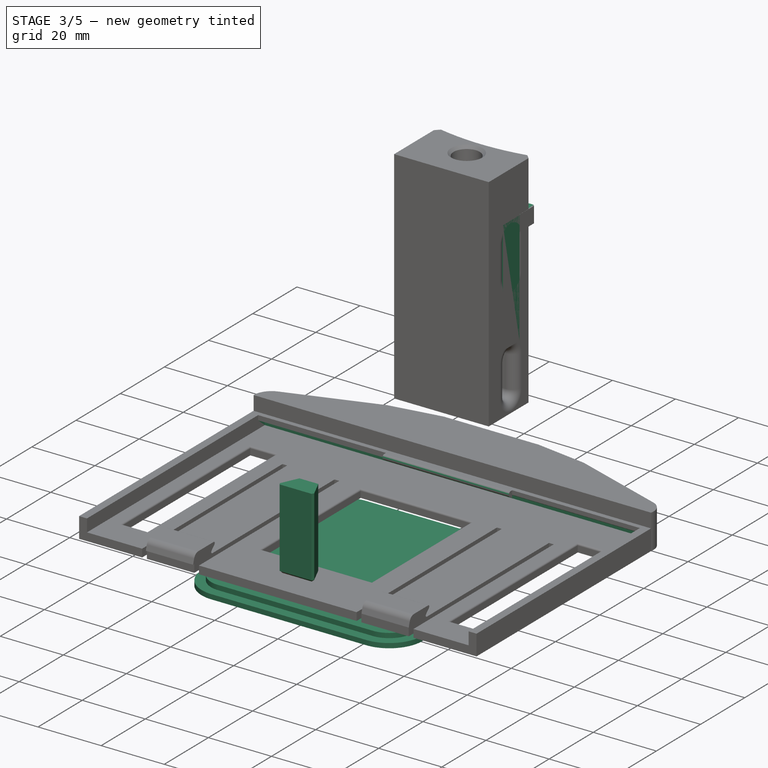
[diagram: stage 3 of 5 — iso view after this stage's code; geometry added in this stage tinted green]
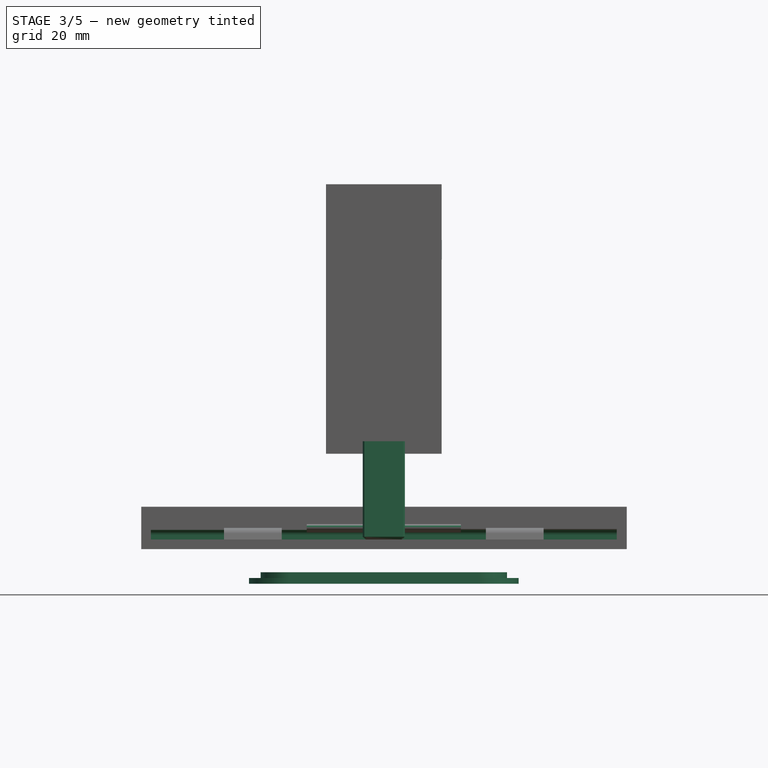
[diagram: stage 3 of 5 — front view after this stage's code; geometry added in this stage tinted green]
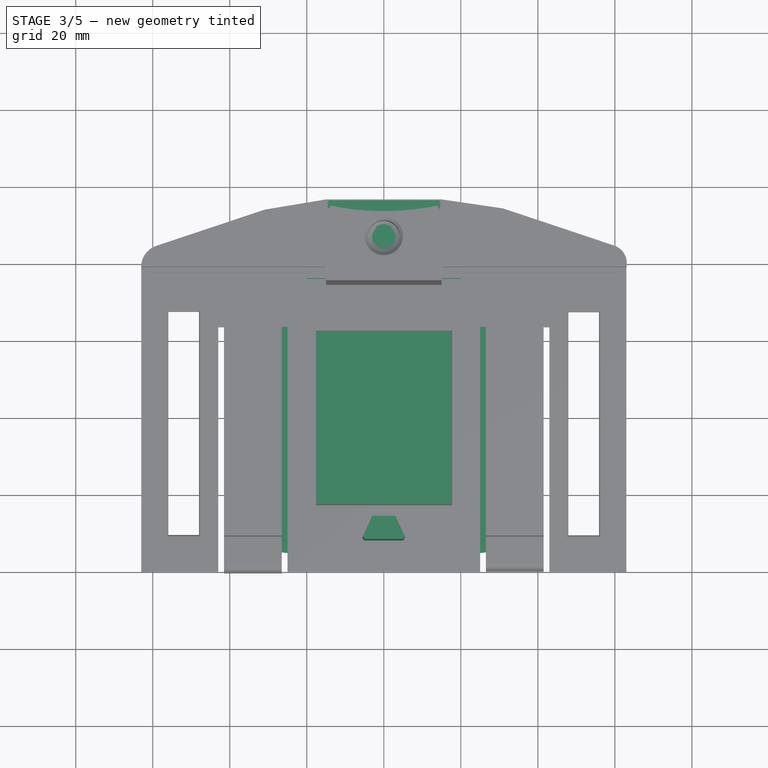
[diagram: stage 3 of 5 — top view after this stage's code; geometry added in this stage tinted green]
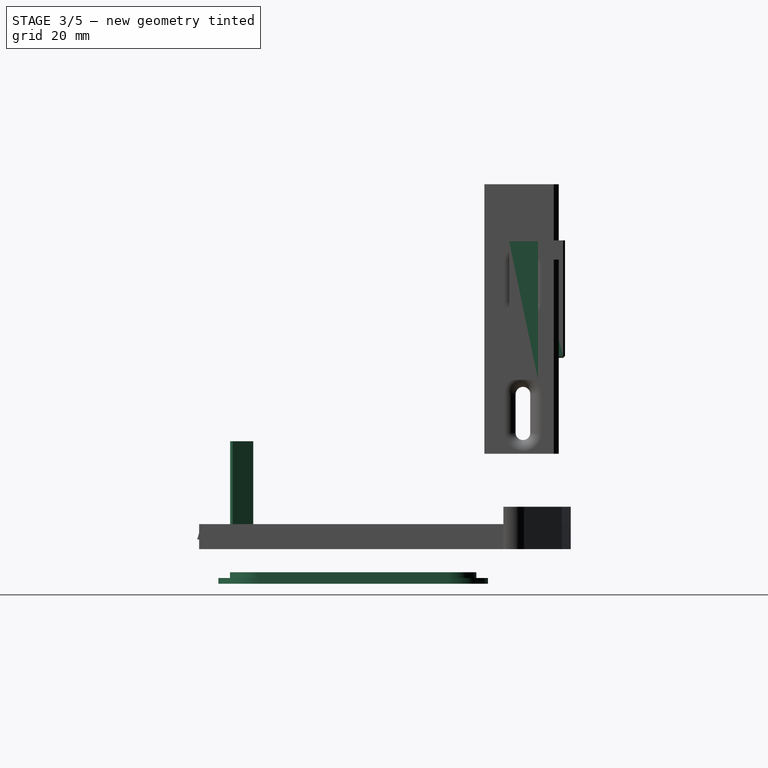
[diagram: stage 3 of 5 — right view after this stage's code; geometry added in this stage tinted green]
FEATURE [PartDesign::Body] Body003  label="BasePlateSolarMount"
  AllowCompound = false
  Group = -> [ShapeBinder,DatumPlane009,Sketch011,Pad006,DatumPlane010,Sketch012,Pocket001,Pocket002,Pocket003]
  Origin = -> Origin007
  Tip = -> Pocket003
FEATURE [PartDesign::Plane] DatumPlane011  label="DatumPlane011_DoveTailSlide"
  AttachmentOffset = pos=(0,-5.5,-46) rot=(0,0,1;0rad)
  AttachmentSupport = -> [XZ_Plane008]
  Length = 64.3145
  MapMode = 5
  Placement = pos=(0,46,-5.5) rot=(1,0,0;1.5708rad)
  ResizeMode = 0
  Width = 116.767
FEATURE [Sketcher::SketchObject] Sketch013
  ArcFitTolerance = 0
  AttachmentOffset = pos=(0,0,-2) rot=(0,0,1;0rad)
  AttachmentSupport = -> [DatumPlane011]
  FullyConstrained = true
  MakeInternals = false
  MapMode = 5
  Placement = pos=(0,48,-5.5) rot=(1,0,0;1.5708rad)
  sketch-geometry (14):
    g0: LineSegment StartX=-15 StartY=82.9524 StartZ=0 EndX=15 EndY=82.9524 EndZ=0
    g1: LineSegment StartX=15 StartY=82.9524 StartZ=0 EndX=15 EndY=46.9524 EndZ=0
    g2: LineSegment StartX=15 StartY=46.9524 StartZ=0 EndX=10.0173 EndY=46.9524 EndZ=0
    g3: LineSegment StartX=10.0173 StartY=46.9524 StartZ=0 EndX=7.5 EndY=49.9524 EndZ=0
    g4: LineSegment StartX=7.5 StartY=49.9524 StartZ=0 EndX=7.5 EndY=51.9524 EndZ=0
    g5: LineSegment StartX=7.5 StartY=51.9524 StartZ=0 EndX=9.5 EndY=51.9524 EndZ=0
    g6: LineSegment StartX=9.5 StartY=51.9524 StartZ=0 EndX=9.5 EndY=77.9524 EndZ=0
    g7: LineSegment StartX=9.5 StartY=77.9524 StartZ=0 EndX=-9.5 EndY=77.9524 EndZ=0
    g8: LineSegment StartX=-9.5 StartY=77.9524 StartZ=0 EndX=-9.5 EndY=51.9524 EndZ=0
    g9: LineSegment StartX=-9.5 StartY=51.9524 StartZ=0 EndX=-7.5 EndY=51.9524 EndZ=0
    g10: LineSegment StartX=-7.5 StartY=51.9524 StartZ=0 EndX=-7.5 EndY=49.9524 EndZ=0
    g11: LineSegment StartX=-7.5 StartY=49.9524 StartZ=0 EndX=-10.0173 EndY=46.9524 EndZ=0
    g12: LineSegment StartX=-10.0173 StartY=46.9524 StartZ=0 EndX=-15 EndY=46.9524 EndZ=0
    g13: LineSegment StartX=-15 StartY=46.9524 StartZ=0 EndX=-15 EndY=82.9524 EndZ=0
  constraints (41):
    c: Coincident(g0,g1)
    c: Vertical(g1)
    c: Coincident(g1,g2)
    c: Horizontal(g2)
    c: Coincident(g2,g3)
    c: Coincident(g3,g4)
    c: Coincident(g4,g5)
    c: Horizontal(g5)
    c: Coincident(g5,g6)
    c: Vertical(g6)
    c: Coincident(g6,g7)
    c: Horizontal(g7)
    c: Coincident(g7,g8)
    c: Vertical(g8)
    c: Coincident(g8,g9)
    c: Horizontal(g9)
    c: Coincident(g9,g10)
    c: Vertical(g10)
    c: Coincident(g10,g11)
    c: Coincident(g11,g12)
    c: Horizontal(g12)
    c: Coincident(g12,g13)
    c: Coincident(g13,g0)
    c: Vertical(g13)
    c: DistanceX(g0,g0) = 30
    c: Symmetric(g0,g0,g-2)
    c: DistanceY(g12,g0) = 36
    c: Equal(g13,g1)
    c: DistanceY(g8,g7) = 26
    c: Equal(g8,g6)
    c: DistanceX(g7,g6) = 19
    c: DistanceX(g8,g9) = 2
    c: Equal(g9,g5)
    c: DistanceY(g10,g9) = 2
    c: Parallel(g10,g4)
    c: Equal(g10,g4)
    c: Equal(g12,g2)
    c: Equal(g11,g3)
    c: DistanceY(g6,g0) = 5
    c: Block(g8)
    c: Angle(g2,g3) = 2.26893
FEATURE [PartDesign::Pad] Pad007
  Direction = (0,-1,2e-16)
  Length = 7.5
  Length2 = 10
  Placement = pos=(0,46,-5.5) rot=(1,0,0;1.5708rad)
  Profile = -> Sketch013
  ReferenceAxis = -> Sketch013 [N_Axis]
  Refine = true
  Suppressed = false
  Type = 0
FEATURE [PartDesign::Pad] Pad008
  Direction = (0,0,1)
  Length = 25.5
  Length2 = 10
  Profile = -> Sketch014
  ReferenceAxis = -> Sketch014 [N_Axis]
  Refine = true
  Suppressed = false
  Type = 0
FEATURE [Sketcher::SketchObject] Sketch029
  ArcFitTolerance = 1e-06
  FullyConstrained = true
  MakeInternals = false
  MapMode = 5
  Placement = pos=(5e-15,48,-5.4) rot=(0,0.71,0.71;3.14159rad)
  sketch-geometry (8):
    g0: LineSegment StartX=-15.0426 StartY=83.0703 StartZ=0 EndX=14.9574 EndY=83.0703 EndZ=0
    g1: LineSegment StartX=14.9574 StartY=83.0703 StartZ=0 EndX=14.9574 EndY=78.0703 EndZ=0
    g2: LineSegment StartX=14.9574 StartY=78.0703 StartZ=0 EndX=2.95744 EndY=78.0703 EndZ=0
    g3: LineSegment StartX=2.95744 StartY=78.0703 StartZ=0 EndX=2.95744 EndY=52.5703 EndZ=0
    g4: LineSegment StartX=2.95744 StartY=52.5703 StartZ=0 EndX=-3.04256 EndY=52.5703 EndZ=0
    g5: LineSegment StartX=-3.04256 StartY=52.5703 StartZ=0 EndX=-3.04256 EndY=78.0703 EndZ=0
    g6: LineSegment StartX=-3.04256 StartY=78.0703 StartZ=0 EndX=-15.0426 EndY=78.0703 EndZ=0
    g7: LineSegment StartX=-15.0426 StartY=78.0703 StartZ=0 EndX=-15.0426 EndY=83.0703 EndZ=0
  constraints (23):
    c: Horizontal(g0)
    c: Coincident(g0,g1)
    c: Vertical(g1)
    c: Coincident(g1,g2)
    c: Horizontal(g2)
    c: Coincident(g2,g3)
    c: Vertical(g3)
    c: Coincident(g3,g4)
    c: Horizontal(g4)
    c: Coincident(g4,g5)
    c: Vertical(g5)
    c: Coincident(g5,g6)
    c: Horizontal(g6)
    c: Coincident(g6,g7)
    c: Coincident(g7,g0)
    c: Vertical(g7)
    c: DistanceX(g0,g0) = 30
    c: DistanceY(g1,g0) = 5
    c: DistanceX(g4,g3) = 6
    c: Equal(g1,g7)
    c: DistanceY(g3,g2) = 25.5
    c: DistanceX(g0,g5) = 12
    c: Block(g0)
FEATURE [PartDesign::Pad] Pad014  label="Pad014_T"
  Direction = (1e-16,1,0)
  Length = 7
  Length2 = 10
  Placement = pos=(5e-15,48,-5.4) rot=(0,0.71,0.71;3.14159rad)
  Profile = -> Sketch029
  ReferenceAxis = -> Sketch029 [N_Axis]
  Refine = true
  Suppressed = false
  Type = 0
FEATURE [Sketcher::SketchObject] Sketch032
  ArcFitTolerance = 1e-06
  AttachmentOffset = pos=(0,0,-10.3) rot=(0,0,1;0rad)
  AttachmentSupport = -> [XY_Plane015]
  FullyConstrained = true
  MakeInternals = false
  MapMode = 5
  Placement = pos=(0,0,-10.3) rot=(0,0,1;0rad)
  sketch-geometry (8):
    g0: LineSegment StartX=-24.5 StartY=32 StartZ=0 EndX=24.5 EndY=32 EndZ=0
    g1: ArcOfCircle CenterX=24.5 CenterY=24.5 CenterZ=0 NormalX=0 NormalY=0 NormalZ=1 AngleXU=0 Radius=7.5 StartAngle=3.26795e-07 EndAngle=1.5708
    g2: LineSegment StartX=32 StartY=24.5 StartZ=0 EndX=32 EndY=-24.5 EndZ=0
    g3: ArcOfCircle CenterX=24.5 CenterY=-24.5 CenterZ=0 NormalX=0 NormalY=0 NormalZ=1 AngleXU=0 Radius=7.5 StartAngle=4.71239 EndAngle=6.28319
    g4: LineSegment StartX=24.5 StartY=-32 StartZ=0 EndX=-24.5 EndY=-32 EndZ=0
    g5: ArcOfCircle CenterX=-24.5 CenterY=-24.5 CenterZ=0 NormalX=0 NormalY=0 NormalZ=1 AngleXU=0 Radius=7.5 StartAngle=3.14159 EndAngle=4.71239
    g6: LineSegment StartX=-32 StartY=-24.5 StartZ=0 EndX=-32 EndY=24.5 EndZ=0
    g7: ArcOfCircle CenterX=-24.5 CenterY=24.5 CenterZ=0 NormalX=0 NormalY=0 NormalZ=1 AngleXU=0 Radius=7.5 StartAngle=1.5708 EndAngle=3.14159
  constraints (19):
    c: Horizontal(g0)
    c: Tangent(g0,g1) = 1.5708
    c: Tangent(g1,g2) = 1.5708
    c: Tangent(g2,g3) = 1.5708
    c: Horizontal(g4)
    c: Tangent(g4,g5) = 1.5708
    c: Tangent(g5,g6) = 1.5708
    c: Tangent(g6,g7) = 1.5708
    c: Tangent(g3,g4) = 1.5708
    c: Tangent(g7,g0) = 1.5708
    c: DistanceX(g6,g1) = 64
    c: DistanceY(g4,g0) = 64
    c: Radius(g1) = 7.5
    c: Equal(g1,g7)
    c: Equal(g1,g5)
    c: Equal(g1,g3)
    c: Equal(g0,g4)
    c: Symmetric(g7,g3,g-1)
    c: Angle(g6,g0) = 1.5708
FEATURE [Sketcher::SketchObject] Sketch033
  ArcFitTolerance = 1e-06
  AttachmentOffset = pos=(0,0,-10) rot=(0,0,1;0rad)
  AttachmentSupport = -> [XY_Plane015]
  FullyConstrained = true
  MakeInternals = false
  MapMode = 5
  Placement = pos=(0,0,-10) rot=(0,0,1;0rad)
  sketch-geometry (8):
    g0: LineSegment StartX=-24.5 StartY=35 StartZ=0 EndX=24.5 EndY=35 EndZ=0
    g1: ArcOfCircle CenterX=24.5 CenterY=24.5 CenterZ=0 NormalX=0 NormalY=0 NormalZ=1 AngleXU=0 Radius=10.5 StartAngle=3.26795e-07 EndAngle=1.5708
    g2: LineSegment StartX=35 StartY=24.5 StartZ=0 EndX=35 EndY=-24.5 EndZ=0
    g3: ArcOfCircle CenterX=24.5 CenterY=-24.5 CenterZ=0 NormalX=0 NormalY=0 NormalZ=1 AngleXU=0 Radius=10.5 StartAngle=4.71239 EndAngle=6.28319
    g4: LineSegment StartX=24.5 StartY=-35 StartZ=0 EndX=-24.5 EndY=-35 EndZ=0
    g5: ArcOfCircle CenterX=-24.5 CenterY=-24.5 CenterZ=0 NormalX=0 NormalY=0 NormalZ=1 AngleXU=0 Radius=10.5 StartAngle=3.14159 EndAngle=4.71239
    g6: LineSegment StartX=-35 StartY=-24.5 StartZ=0 EndX=-35 EndY=24.5 EndZ=0
    g7: ArcOfCircle CenterX=-24.5 CenterY=24.5 CenterZ=0 NormalX=0 NormalY=0 NormalZ=1 AngleXU=0 Radius=10.5 StartAngle=1.5708 EndAngle=3.14159
  constraints (19):
    c: Horizontal(g0)
    c: Tangent(g0,g1) = 1.5708
    c: Tangent(g1,g2) = 1.5708
    c: Tangent(g2,g3) = 1.5708
    c: Horizontal(g4)
    c: Tangent(g4,g5) = 1.5708
    c: Tangent(g5,g6) = 1.5708
    c: Tangent(g6,g7) = 1.5708
    c: Tangent(g3,g4) = 1.5708
    c: Tangent(g7,g0) = 1.5708
    c: DistanceX(g6,g1) = 70
    c: DistanceY(g4,g0) = 70
    c: Radius(g1) = 10.5
    c: Equal(g1,g7)
    c: Equal(g1,g5)
    c: Equal(g1,g3)
    c: Equal(g0,g4)
    c: Symmetric(g7,g3,g-1)
    c: Angle(g6,g0) = 1.5708
FEATURE [PartDesign::ShapeBinder] CopyPad017
  Placement = pos=(0,0,1.5) rot=(0,0,1;0rad)
  TraceSupport = false
FEATURE [Sketcher::SketchObject] Sketch034
  ArcFitTolerance = 1e-06
  AttachmentSupport = -> [CopyPad017]
  FullyConstrained = true
  MakeInternals = false
  MapMode = 5
  Placement = pos=(0,0,-8.5) rot=(0,0,1;0rad)
FEATURE [Sketcher::SketchObject] Sketch035
  ArcFitTolerance = 1e-06
  AttachmentSupport = -> [XY_Plane015]
  FullyConstrained = true
  MakeInternals = false
  MapMode = 5
  sketch-geometry (3):
    g0: Circle CenterX=-26.7136 CenterY=26.7626 CenterZ=0 NormalX=0 NormalY=0 NormalZ=1 AngleXU=0 Radius=3.5
    g1: LineSegment [constr] StartX=-18.5136 StartY=32.5626 StartZ=0 EndX=-18.5136 EndY=18.5626 EndZ=0
    g2: LineSegment [constr] StartX=-32.5136 StartY=18.5626 StartZ=0 EndX=-18.5198 EndY=18.5626 EndZ=0
  constraints (9):
    c: Radius(g0) = 3.5
    c: Vertical(g1)
    c: Horizontal(g2)
    c: Block(g2)
    c: Block(g1)
    c: DistanceX(g2,g1) = 14
    c: DistanceY(g1,g1) = 14
    c: DistanceX(g2,g0) = 5.8
    c: DistanceY(g0,g1) = 5.8
FEATURE [PartDesign::Body] Body001  label="InnerContainer"
  AllowCompound = false
  Group = -> [Sketch,Pad,Thickness,DatumPlane007,Sketch009,Pad005,PolarPattern,DatumPlane008,Sketch010,Pocket,PolarPattern001,CopyPad017,Sketch034,Sketch035]
  Origin = -> Origin001
  Placement = pos=(0,0,10.1) rot=(0,0,1;0rad)
  Tip = -> PolarPattern001
FEATURE [PartDesign::Pad] Pad016  label="Pad016_CoverBottomInner"
  Direction = (0,0,1)
  Length = 1.8
  Length2 = 10
  Profile = -> Sketch032
  ReferenceAxis = -> Sketch032 [N_Axis]
  Refine = true
  Suppressed = false
  Type = 0
FEATURE [PartDesign::Pad] Pad017  label="Pad017_CoverBottomOuter"
  BaseFeature = -> Pad016
  Direction = (0,0,1)
  Length = 1.5
  Length2 = 10
  Profile = -> Sketch033
  ReferenceAxis = -> Sketch033 [N_Axis]
  Refine = true
  Reversed = true
  Suppressed = false
  Type = 0
FEATURE [PartDesign::Plane] DatumPlane017
  AttachmentSupport = -> [Pad017]
  Length = 84
  MapMode = 5
  Placement = pos=(0,0,-11.5) rot=(1,0,0;3.14159rad)
  ResizeMode = 0
  Width = 84
FEATURE [Sketcher::SketchObject] Sketch036  label="Sketch036_ScrewHead"
  ArcFitTolerance = 1e-06
  AttachmentSupport = -> [DatumPlane017]
  FullyConstrained = true
  MakeInternals = false
  MapMode = 5
  Placement = pos=(0,0,-11.5) rot=(1,0,0;3.14159rad)
  sketch-geometry (3):
    g0: Circle CenterX=-26.2118 CenterY=26.2074 CenterZ=0 NormalX=0 NormalY=0 NormalZ=1 AngleXU=0 Radius=2.25
    g1: LineSegment [constr] StartX=-14.6598 StartY=32.0074 StartZ=0 EndX=-38.4194 EndY=32.0074 EndZ=0
    g2: LineSegment [constr] StartX=-32.0118 StartY=15.5859 StartZ=0 EndX=-32.0118 EndY=41.0243 EndZ=0
  constraints (7):
    c: Horizontal(g1)
    c: Vertical(g2)
    c: DistanceX(g2,g0) = 5.8
    c: Radius(g0) = 2.25
    c: Block(g1)
    c: Block(g2)
    c: DistanceY(g0,g1) = 5.8
FEATURE [PartDesign::Hole] Hole001  label="Hole001_ScrewHead"
  BaseFeature = -> Pad017
  CustomThreadClearance = 0
  Depth = 0.5
  DepthType = 0
  Diameter = 4.5
  DrillForDepth = false
  DrillPoint = 1
  DrillPointAngle = 118
  HoleCutCountersinkAngle = 90
  HoleCutCustomValues = false
  HoleCutDepth = 0
  HoleCutDiameter = 6.1
  HoleCutType = 0
  ModelThread = false
  Profile = -> Sketch036 [Edge1]
  Refine = true
  Suppressed = false
  Tapered = false
  TaperedAngle = 90
  ThreadClass = 0
  ThreadDepth = 0.5
  ThreadDepthType = 0
  ThreadDirection = 0
  ThreadFit = 0
  ThreadSize = 0
  ThreadType = 0
  Threaded = false
  UseCustomThreadClearance = false
FEATURE [PartDesign::PolarPattern] PolarPattern002  label="PolarPattern002_ScrewHeads"
  Angle = 360
  Axis = -> Sketch036 [N_Axis]
  BaseFeature = -> Hole001
  Mode = 0
  Occurrences = 4
  Offset = 120
  Originals = -> [Hole001]
  Refine = true
  Suppressed = false
  TransformMode = 0
FEATURE [PartDesign::Body] Body008  label="CoverBottom"
  AllowCompound = false
  Group = -> [Sketch032,Sketch033,Pad016,Pad017,DatumPlane017,Sketch036,Hole001,PolarPattern002,Sketch037,Hole002,PolarPattern003]
  Origin = -> Origin012
  Tip = -> PolarPattern003
FEATURE [PartDesign::Fillet] Fillet037
  Base = -> Pad007 [Edge20,Edge23]
  BaseFeature = -> Pad007
  Placement = pos=(0,46,-5.5) rot=(1,0,0;1.5708rad)
  Radius = 1.5
  Refine = true
  SupportTransform = false
  Suppressed = false
  UseAllEdges = false
FEATURE [PartDesign::Chamfer] Chamfer004
  Angle = 45
  Base = -> Pad014 [Edge19,Edge13,Edge11,Edge16,Edge14,Edge10,Edge22,Edge24,Edge7]
  BaseFeature = -> Pad014
  ChamferType = 0
  FlipDirection = false
  Placement = pos=(5e-15,48,-5.4) rot=(0,0.71,0.71;3.14159rad)
  Refine = true
  Size = 0.5
  Size2 = 1
  SupportTransform = false
  Suppressed = false
  UseAllEdges = false
FEATURE [PartDesign::Body] Body007  label="TripodHolder"
  AllowCompound = false
  Group = -> [Sketch029,Pad014,DatumPlane014,Sketch030,Pad015,DatumPlane015,Chamfer004]
  Origin = -> Origin011
  Placement = pos=(0,0,-0.2) rot=(0,0,1;0rad)
  Tip = -> Chamfer004
FEATURE [PartDesign::Chamfer] Chamfer005
  Angle = 45
  Base = -> Pad008 [Edge5,Edge9,Edge3,Edge2,Edge6]
  BaseFeature = -> Pad008
  ChamferType = 0
  FlipDirection = false
  Refine = true
  Size = 0.7
  Size2 = 1
  SupportTransform = false
  Suppressed = false
  UseAllEdges = false
FEATURE [PartDesign::Body] Body005  label="DoveTailBracket"
  AllowCompound = false
  Group = -> [Sketch014,Pad008,Chamfer005]
  Origin = -> Origin009
  Placement = pos=(0,74,47) rot=(0,0,1;0rad)
  Tip = -> Chamfer005
FEATURE [PartDesign::Fillet] Fillet038
  Base = -> Fillet037 [Edge41,Edge3]
  BaseFeature = -> Fillet037
  Placement = pos=(0,46,-5.5) rot=(1,0,0;1.5708rad)
  Radius = 1
  Refine = true
  SupportTransform = false
  Suppressed = false
  UseAllEdges = false
FEATURE [PartDesign::Fillet] Fillet039
  Base = -> Fillet038 [Edge43,Edge52]
  BaseFeature = -> Fillet038
  Placement = pos=(0,46,-5.5) rot=(1,0,0;1.5708rad)
  Radius = 2
  Refine = true
  SupportTransform = false
  Suppressed = false
  UseAllEdges = false
FEATURE [PartDesign::Plane] DatumPlane018  label="DatumPlane018_CutRubbet"
  AttachmentSupport = -> [Hole]
  Length = 141.981
  MapMode = 5
  Placement = pos=(0,37.5,0) rot=(1,0,0;1.5708rad)
  ResizeMode = 0
  Width = 65.8808
FEATURE [Sketcher::SketchObject] Sketch038
  ArcFitTolerance = 1e-06
  AttachmentSupport = -> [DatumPlane018]
  FullyConstrained = true
  MakeInternals = false
  MapMode = 5
  Placement = pos=(0,37.5,0) rot=(1,0,0;1.5708rad)
  sketch-geometry (4):
    g0: LineSegment StartX=-60.5 StartY=2.5 StartZ=0 EndX=-60.5 EndY=0 EndZ=0
    g1: LineSegment StartX=-60.5 StartY=0 StartZ=0 EndX=60.5 EndY=0 EndZ=0
    g2: LineSegment StartX=60.5 StartY=0 StartZ=0 EndX=60.5 EndY=2.5 EndZ=0
    g3: LineSegment StartX=60.5 StartY=2.5 StartZ=0 EndX=-60.5 EndY=2.5 EndZ=0
  constraints (12):
    c: Coincident(g0,g1)
    c: Coincident(g1,g2)
    c: Coincident(g2,g3)
    c: Coincident(g3,g0)
    c: Vertical(g0)
    c: Vertical(g2)
    c: Horizontal(g1)
    c: Horizontal(g3)
    c: PointOnObject(g1,g-1)
    c: DistanceX(g0,g2) = 121
    c: DistanceY(g0,g0) = 2.5
    c: DistanceX(g0,g-1) = 60.5
FEATURE [PartDesign::Pocket] Pocket012
  BaseFeature = -> Hole
  Direction = (0,1,-2e-16)
  Length = 3
  Length2 = 5
  Profile = -> Sketch038
  ReferenceAxis = -> Sketch038 [N_Axis]
  Refine = true
  Suppressed = false
  Type = 0
FEATURE [PartDesign::Fillet] Fillet040
  Base = -> Pocket012 [Edge215]
  BaseFeature = -> Pocket012
  Radius = 1.4
  Refine = true
  SupportTransform = false
  Suppressed = false
  UseAllEdges = false
FEATURE [PartDesign::Fillet] Fillet041
  Base = -> Fillet040 [Edge3]
  BaseFeature = -> Fillet040
  Radius = 0.3
  Refine = true
  SupportTransform = false
  Suppressed = false
  UseAllEdges = false
FEATURE [PartDesign::Fillet] Fillet042
  Base = -> Fillet041 [Edge39]
  BaseFeature = -> Fillet041
  Radius = 0.8
  Refine = true
  SupportTransform = false
  Suppressed = false
  UseAllEdges = false
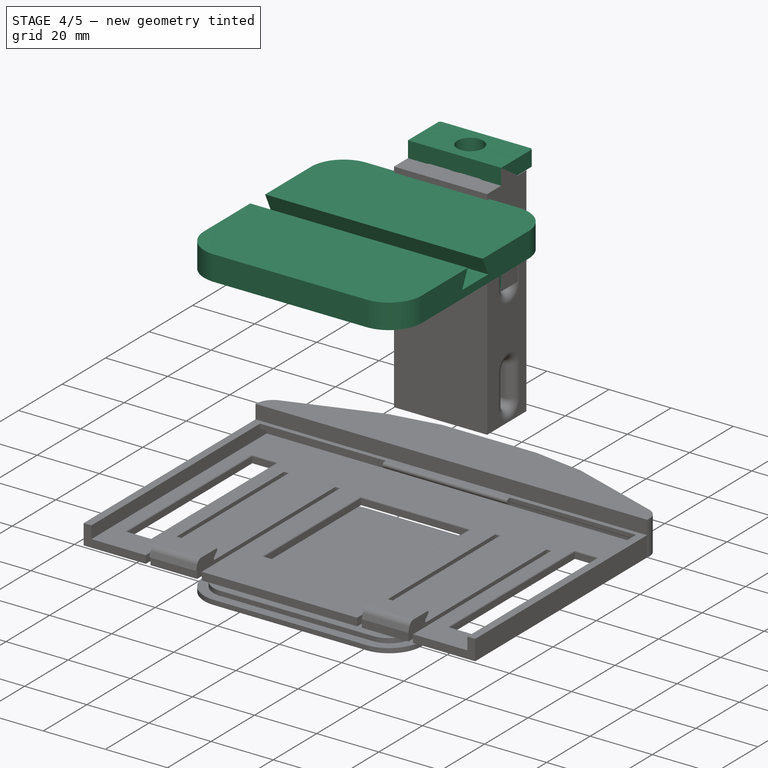
[diagram: stage 4 of 5 — iso view after this stage's code; geometry added in this stage tinted green]
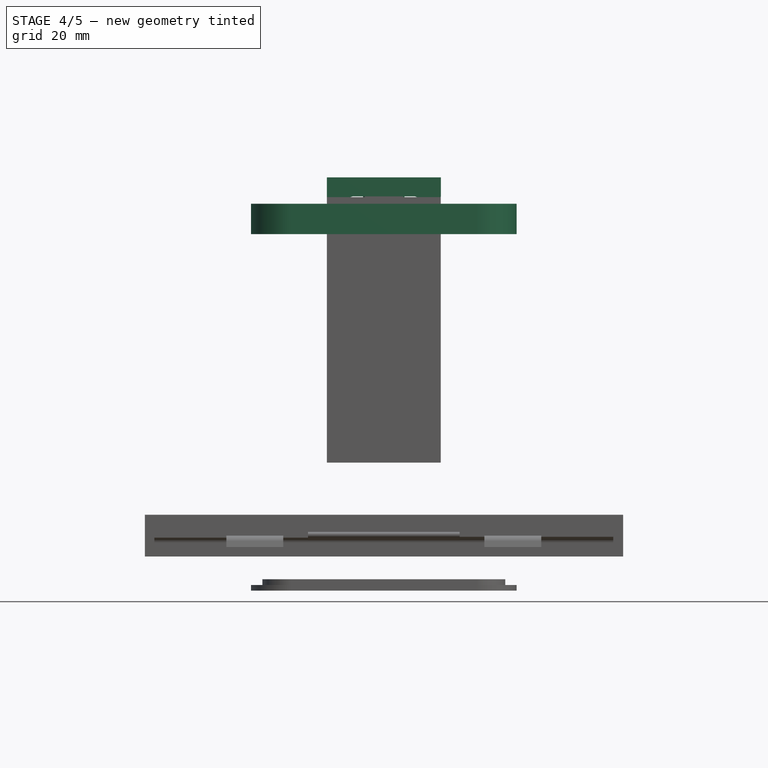
[diagram: stage 4 of 5 — front view after this stage's code; geometry added in this stage tinted green]
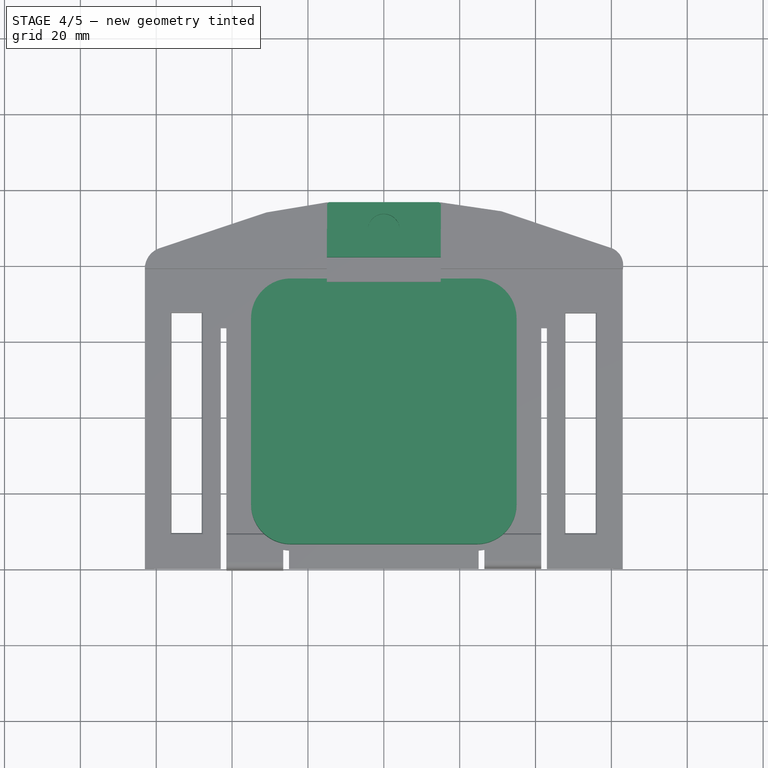
[diagram: stage 4 of 5 — top view after this stage's code; geometry added in this stage tinted green]
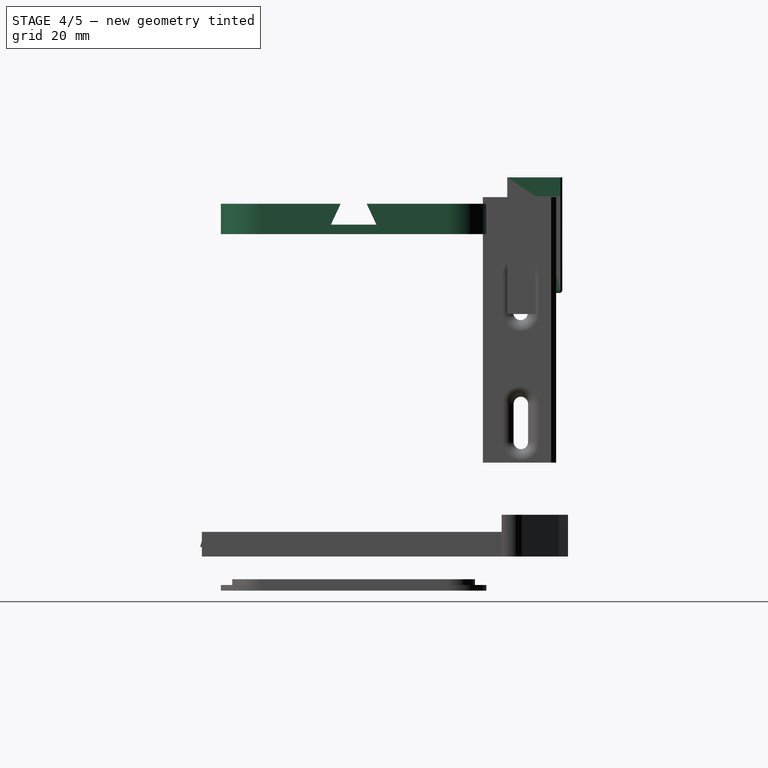
[diagram: stage 4 of 5 — right view after this stage's code; geometry added in this stage tinted green]
FEATURE [Part::Feature] Compound  label="Compound_Logo"
  shape: bbox 967.2 x 726.1 x 3.556e-07 mm, 32 faces, 0 solids (baked)
FEATURE [Part::FeaturePython] Clone  label="Compound001_Logo"  # Draft clone (typed FeaturePython)
  AttacherType = Attacher::AttachEngine3D
  Fuse = false
  Objects = -> [Compound]
  Placement = pos=(-19,-47,26) rot=(1,0,0;1.5708rad)
  Scale = (0.04,0.04,1)
FEATURE [Part::Feature] Projection_Object  label="Projektionsobjekt_Logo"
  Placement = pos=(0,1.7,0) rot=(0,0,1;0rad)
  shape: bbox 67.25 x 16.57 x 114.3 mm, 407 faces, 29 solids (baked)
FEATURE [PartDesign::ShapeBinder] ShapeBinder  label="ShapeBinder_InnerContainerTop"
  Placement = pos=(0,0,80) rot=(0,0,1;0rad)
  Support = -> [PolarPattern001]
  TraceSupport = false
FEATURE [PartDesign::Plane] DatumPlane009  label="DatumPlane009_ShapeBinder_InnerContainerTop"
  AttachmentSupport = -> [ShapeBinder]
  Length = 84
  MapMode = 5
  Placement = pos=(0,0,82.5) rot=(0,0,1;0rad)
  ResizeMode = 0
  Width = 84
FEATURE [Sketcher::SketchObject] Sketch011
  ArcFitTolerance = 0
  AttachmentSupport = -> [DatumPlane009]
  FullyConstrained = true
  MakeInternals = false
  MapMode = 5
  Placement = pos=(0,0,82.5) rot=(0,0,1;0rad)
  sketch-geometry (8):
    g0: LineSegment StartX=-24.5 StartY=35 StartZ=0 EndX=24.5 EndY=35 EndZ=0
    g1: ArcOfCircle CenterX=24.5 CenterY=24.5 CenterZ=0 NormalX=0 NormalY=0 NormalZ=1 AngleXU=0 Radius=10.5 StartAngle=1e-16 EndAngle=1.5708
    g2: LineSegment StartX=35 StartY=24.5 StartZ=0 EndX=35 EndY=-24.5 EndZ=0
    g3: ArcOfCircle CenterX=24.5 CenterY=-24.5 CenterZ=0 NormalX=0 NormalY=0 NormalZ=1 AngleXU=0 Radius=10.5 StartAngle=4.71239 EndAngle=6.28319
    g4: LineSegment StartX=24.5 StartY=-35 StartZ=0 EndX=-24.5 EndY=-35 EndZ=0
    g5: ArcOfCircle CenterX=-24.5 CenterY=-24.5 CenterZ=0 NormalX=0 NormalY=0 NormalZ=1 AngleXU=0 Radius=10.5 StartAngle=3.14159 EndAngle=4.71239
    g6: LineSegment StartX=-35 StartY=-24.5 StartZ=0 EndX=-35 EndY=24.5 EndZ=0
    g7: ArcOfCircle CenterX=-24.5 CenterY=24.5 CenterZ=0 NormalX=0 NormalY=0 NormalZ=1 AngleXU=0 Radius=10.5 StartAngle=1.5708 EndAngle=3.14159
  constraints (19):
    c: Horizontal(g0)
    c: Tangent(g0,g1) = 1.5708
    c: Vertical(g2)
    c: Tangent(g2,g3) = 1.5708
    c: Horizontal(g4)
    c: Tangent(g4,g5) = 1.5708
    c: Vertical(g6)
    c: Tangent(g6,g7) = 1.5708
    c: Tangent(g1,g2) = 1.5708
    c: Tangent(g3,g4) = 1.5708
    c: Tangent(g5,g6) = 1.5708
    c: Tangent(g7,g0) = 1.5708
    c: DistanceY(g4,g0) = 70
    c: DistanceX(g6,g1) = 70
    c: Equal(g1,g7)
    c: Equal(g5,g3)
    c: Symmetric(g7,g3,g-1)
    c: Equal(g1,g3)
    c: Radius(g1) = 10.5
FEATURE [PartDesign::Pad] Pad006  label="Pad006_BasePlate"
  Direction = (0,0,1)
  Length = 8
  Length2 = 10
  Placement = pos=(0,0,82.5) rot=(0,0,1;0rad)
  Profile = -> Sketch011
  ReferenceAxis = -> Sketch011 [N_Axis]
  Refine = true
  Suppressed = false
  Type = 0
FEATURE [PartDesign::Plane] DatumPlane010  label="DatumPlane010_DoveTailBasePlateSolar"
  AttachmentSupport = -> [Pad006]
  Length = 87.9833
  MapMode = 5
  Placement = pos=(35,0,82.5) rot=(0.57735,0.57735,0.57735;2.0944rad)
  ResizeMode = 0
  Width = 133.483
FEATURE [Sketcher::SketchObject] Sketch012
  ArcFitTolerance = 0
  AttachmentSupport = -> [DatumPlane010]
  FullyConstrained = true
  MakeInternals = false
  MapMode = 5
  Placement = pos=(35,0,82.5) rot=(0.57735,0.57735,0.57735;2.0944rad)
  sketch-geometry (4):
    g0: LineSegment StartX=-3.43531 StartY=8 StartZ=0 EndX=-6 EndY=2.5 EndZ=0
    g1: LineSegment StartX=6 StartY=2.5 StartZ=0 EndX=3.43531 EndY=8 EndZ=0
    g2: LineSegment StartX=-3.43531 StartY=8 StartZ=0 EndX=3.43531 EndY=8 EndZ=0
    g3: LineSegment StartX=6 StartY=2.5 StartZ=0 EndX=-6 EndY=2.5 EndZ=0
  constraints (11):
    c: Coincident(g2,g0)
    c: Coincident(g2,g1)
    c: Symmetric(g0,g1,g-2)
    c: Coincident(g3,g1)
    c: Coincident(g3,g0)
    c: Equal(g0,g1)
    c: DistanceY(g1,g1) = 5.5
    c: DistanceX(g0,g1) = 12
    c: Angle(g3,g0) = 1.13446
    c: Parallel(g2,g3)
    c: DistanceY(g-1,g0) = 8
FEATURE [PartDesign::Pocket] Pocket001
  BaseFeature = -> Pad006
  Direction = (-1,0,0)
  Length = 75
  Length2 = 5
  Placement = pos=(0,0,82.5) rot=(0,0,1;0rad)
  Profile = -> Sketch012
  ReferenceAxis = -> Sketch012 [N_Axis]
  Refine = true
  Suppressed = false
  Type = 0
FEATURE [PartDesign::Plane] DatumPlane014  label="DatumPlane014_TopBracket"
  AttachmentSupport = -> [Pad014]
  Length = 62.083
  MapMode = 5
  Placement = pos=(5e-15,48,77.6703) rot=(0,0,1;0rad)
  ResizeMode = 0
  Width = 85.083
FEATURE [Sketcher::SketchObject] Sketch030
  ArcFitTolerance = 1e-06
  AttachmentSupport = -> [DatumPlane014]
  FullyConstrained = true
  MakeInternals = false
  MapMode = 5
  Placement = pos=(5e-15,48,77.6703) rot=(0,0,1;0rad)
  sketch-geometry (6):
    g0: LineSegment StartX=-14.9843 StartY=6.97163 StartZ=0 EndX=-14.9843 EndY=-7.52837 EndZ=0
    g1: LineSegment StartX=-14.9843 StartY=-7.52837 StartZ=0 EndX=15.0157 EndY=-7.52837 EndZ=0
    g2: LineSegment StartX=15.0157 StartY=-7.52837 StartZ=0 EndX=15.0157 EndY=6.97163 EndZ=0
    g3: LineSegment StartX=15.0157 StartY=6.97163 StartZ=0 EndX=-14.9843 EndY=6.97163 EndZ=0
    g4: LineSegment [constr] StartX=-14.9843 StartY=6.97163 StartZ=0 EndX=15.0157 EndY=-7.52837 EndZ=0
    g5: LineSegment [constr] StartX=-14.9843 StartY=-7.52837 StartZ=0 EndX=15.0157 EndY=6.97163 EndZ=0
  constraints (15):
    c: Coincident(g0,g1)
    c: Coincident(g1,g2)
    c: Coincident(g2,g3)
    c: Coincident(g3,g0)
    c: Vertical(g0)
    c: Vertical(g2)
    c: Horizontal(g1)
    c: Horizontal(g3)
    c: DistanceX(g0,g2) = 30
    c: DistanceY(g1,g2) = 14.5
    c: Block(g3)
    c: Coincident(g4,g0)
    c: Coincident(g4,g1)
    c: Coincident(g5,g0)
    c: Coincident(g5,g2)
FEATURE [PartDesign::Pad] Pad015  label="Pad015_TopBracket"
  BaseFeature = -> Pad014
  Direction = (0,0,1)
  Length = 6.5
  Length2 = 10
  Placement = pos=(5e-15,48,-5.4) rot=(0,0.71,0.71;3.14159rad)
  Profile = -> Sketch030
  ReferenceAxis = -> Sketch030 [N_Axis]
  Refine = true
  Suppressed = false
  Type = 0
FEATURE [PartDesign::Plane] DatumPlane015
  AttachmentSupport = -> [Pad015]
  Length = 62.083
  MapMode = 5
  Placement = pos=(5e-15,48,84.1703) rot=(0,0,1;0rad)
  ResizeMode = 0
  Width = 85.083
FEATURE [PartDesign::Fillet] Fillet015
  Base = -> Pad007 [Edge14]
  BaseFeature = -> Pad007
  Placement = pos=(0,46,-5.5) rot=(1,0,0;1.5708rad)
  Radius = 1
  Refine = true
  SupportTransform = false
  Suppressed = false
  UseAllEdges = false
FEATURE [PartDesign::Fillet] Fillet016
  Base = -> Fillet015 [Edge43]
  BaseFeature = -> Fillet015
  Placement = pos=(0,46,-5.5) rot=(1,0,0;1.5708rad)
  Radius = 1
  Refine = true
  SupportTransform = false
  Suppressed = false
  UseAllEdges = false
FEATURE [PartDesign::Fillet] Fillet017
  Base = -> Fillet016 [Edge14,Edge10,Edge3,Edge7]
  BaseFeature = -> Fillet016
  Placement = pos=(0,46,-5.5) rot=(1,0,0;1.5708rad)
  Radius = 0.5
  Refine = true
  SupportTransform = false
  Suppressed = false
  UseAllEdges = false
FEATURE [PartDesign::Fillet] Fillet018
  Base = -> Fillet017 [Edge8]
  BaseFeature = -> Fillet017
  Placement = pos=(0,46,-5.5) rot=(1,0,0;1.5708rad)
  Radius = 1
  Refine = true
  SupportTransform = false
  Suppressed = false
  UseAllEdges = false
FEATURE [PartDesign::Fillet] Fillet019
  Base = -> Fillet018 [Edge7]
  BaseFeature = -> Fillet018
  Placement = pos=(0,46,-5.5) rot=(1,0,0;1.5708rad)
  Radius = 1
  Refine = true
  SupportTransform = false
  Suppressed = false
  UseAllEdges = false
FEATURE [PartDesign::Fillet] Fillet020
  Base = -> Fillet019 [Edge9]
  BaseFeature = -> Fillet019
  Placement = pos=(0,46,-5.5) rot=(1,0,0;1.5708rad)
  Radius = 1
  Refine = true
  SupportTransform = false
  Suppressed = false
  UseAllEdges = false
FEATURE [PartDesign::Fillet] Fillet021
  Base = -> Fillet020 [Edge11]
  BaseFeature = -> Fillet020
  Placement = pos=(0,46,-5.5) rot=(1,0,0;1.5708rad)
  Radius = 1
  Refine = true
  SupportTransform = false
  Suppressed = false
  UseAllEdges = false
FEATURE [Part::Cylinder] Cylinder  label="Zylinder"
  Angle = 360
  AttacherType = Attacher::AttachEngine3D
  FirstAngle = 0
  Height = 11
  Placement = pos=(0,47.72,73) rot=(0,0,1;0rad)
  Radius = 4.2
  SecondAngle = 0
FEATURE [Sketcher::SketchObject] Sketch037  label="Sketch037_Screw"
  ArcFitTolerance = 1e-06
  AttachmentSupport = -> [DatumPlane017]
  FullyConstrained = true
  MakeInternals = false
  MapMode = 5
  Placement = pos=(0,0,-11.5) rot=(1,0,0;3.14159rad)
  sketch-geometry (3):
    g0: Circle CenterX=-26.1862 CenterY=26.1588 CenterZ=0 NormalX=0 NormalY=0 NormalZ=1 AngleXU=0 Radius=1.25
    g1: LineSegment [constr] StartX=-14.9508 StartY=31.9588 StartZ=0 EndX=-40.052 EndY=31.9588 EndZ=0
    g2: LineSegment [constr] StartX=-31.9862 StartY=19.9679 StartZ=0 EndX=-31.9862 EndY=38.0085 EndZ=0
  constraints (7):
    c: Radius(g0) = 1.25
    c: Horizontal(g1)
    c: Vertical(g2)
    c: DistanceX(g2,g0) = 5.8
    c: DistanceY(g0,g1) = 5.8
    c: Block(g1)
    c: Block(g2)
FEATURE [PartDesign::Hole] Hole002  label="Hole002_Screw"
  BaseFeature = -> PolarPattern002
  CustomThreadClearance = 0
  Depth = 25
  DepthType = 0
  Diameter = 2.5
  DrillForDepth = false
  DrillPoint = 1
  DrillPointAngle = 118
  HoleCutCountersinkAngle = 90
  HoleCutCustomValues = false
  HoleCutDepth = 0
  HoleCutDiameter = 6.1
  HoleCutType = 0
  ModelThread = false
  Profile = -> Sketch037
  Refine = true
  Suppressed = false
  Tapered = false
  TaperedAngle = 90
  ThreadClass = 0
  ThreadDepth = 25
  ThreadDepthType = 0
  ThreadDirection = 0
  ThreadFit = 0
  ThreadSize = 0
  ThreadType = 0
  Threaded = false
  UseCustomThreadClearance = false
FEATURE [PartDesign::PolarPattern] PolarPattern003  label="PolarPattern003_Screws"
  Angle = 360
  Axis = -> Sketch037 [N_Axis]
  BaseFeature = -> Hole002
  Mode = 0
  Occurrences = 4
  Offset = 120
  Originals = -> [Hole002]
  Refine = true
  Suppressed = false
  TransformMode = 0
FEATURE [PartDesign::Body] Body004  label="DoveTailSlide"
  AllowCompound = false
  Group = -> [Sketch013,DatumPlane011,Pad007,Fillet015,Fillet016,Fillet017,Fillet018,Fillet019,Fillet020,Fillet021,Fillet037,Fillet038,Fillet039]
  Origin = -> Origin008
  Tip = -> Fillet039
FEATURE [Part::MultiFuse] Fusion  label="Fusion_DoveTailSlide+DoveTailBracket"
  Refine = true
  Shapes = -> [Body004,Body005]
FEATURE [Part::MultiFuse] Fusion001  label="Fusion001_TriposHolderComplete"
  Refine = true
  Shapes = -> [Fusion,Body007]
FEATURE [Part::Cut] Cut  label="Cut_TripodHolderCompleteWithHole"
  Base = -> Fusion001
  Placement = pos=(0,0,20) rot=(0,0,1;0rad)
  Refine = true
  Tool = -> Cylinder
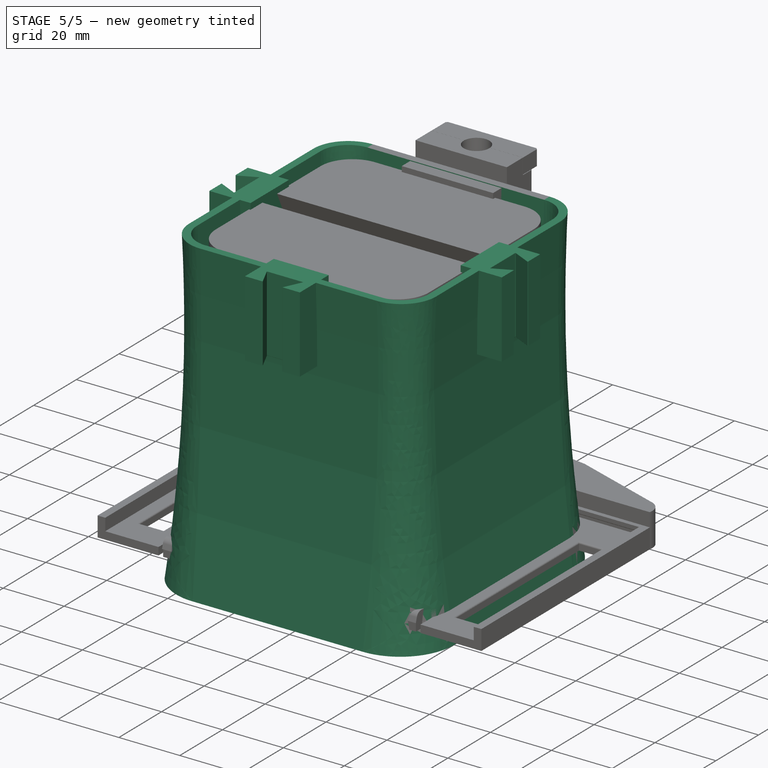
[diagram: stage 5 of 5 — iso view after this stage's code; geometry added in this stage tinted green]
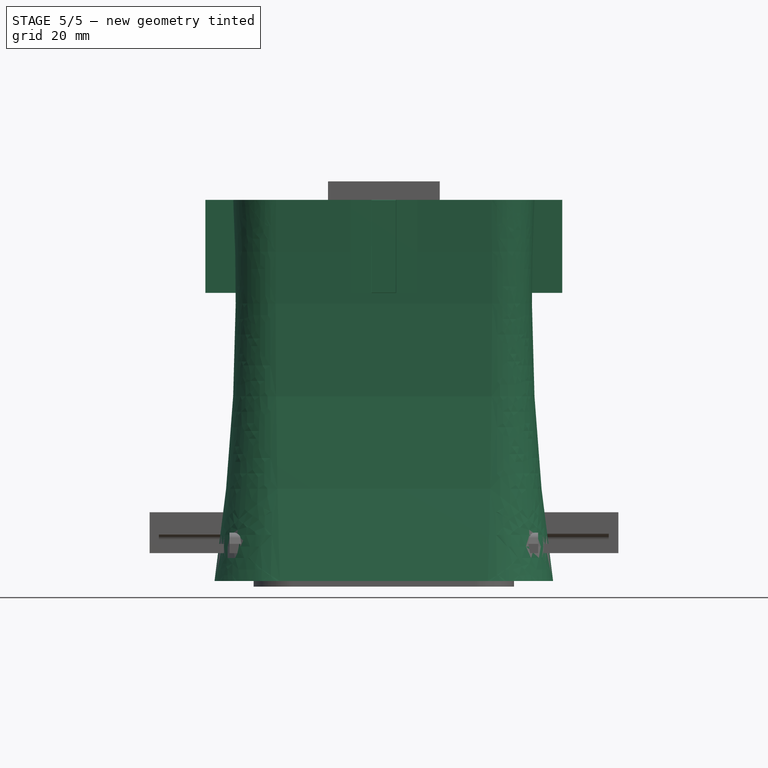
[diagram: stage 5 of 5 — front view after this stage's code; geometry added in this stage tinted green]
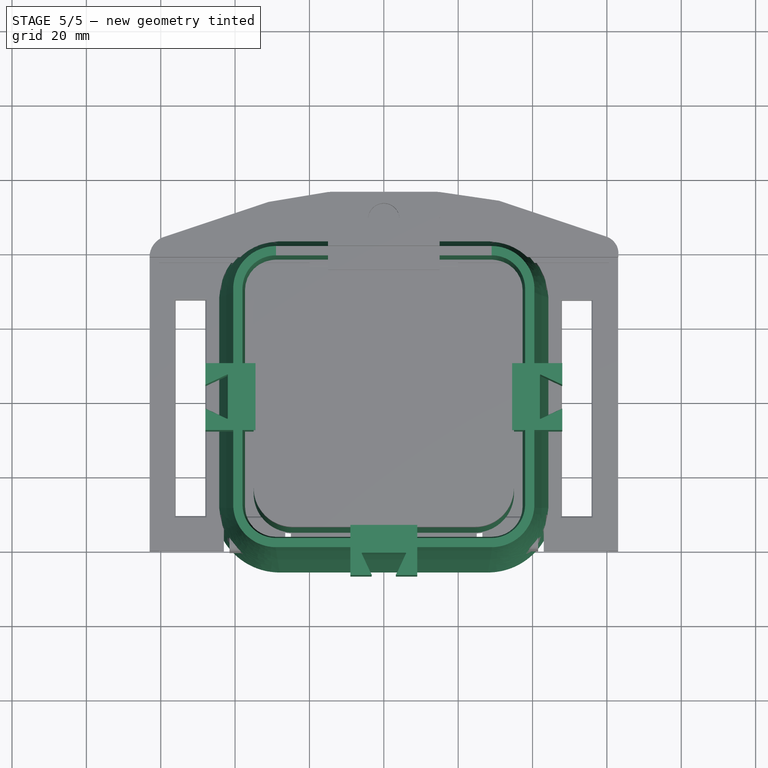
[diagram: stage 5 of 5 — top view after this stage's code; geometry added in this stage tinted green]
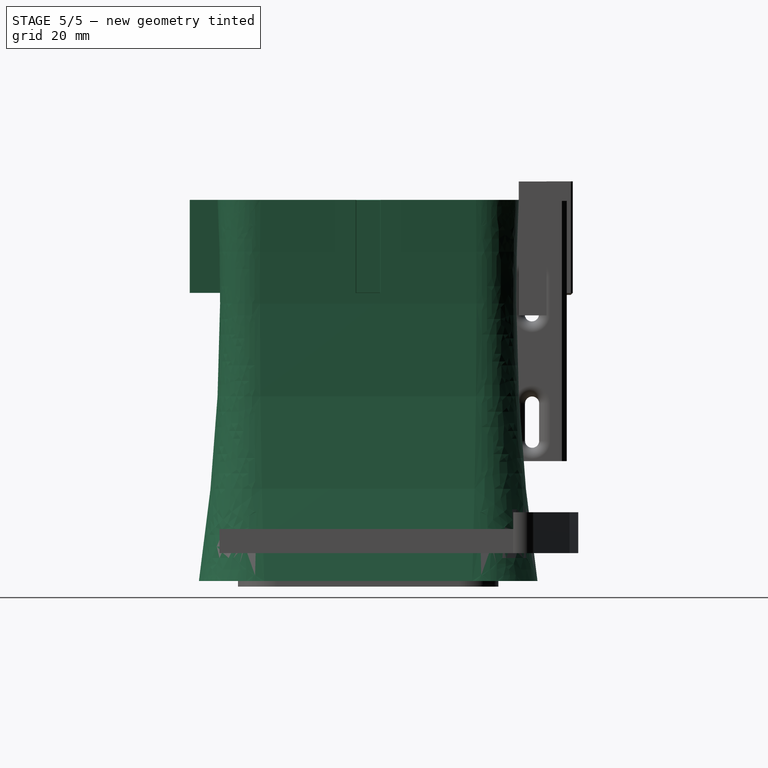
[diagram: stage 5 of 5 — right view after this stage's code; geometry added in this stage tinted green]
FEATURE [Sketcher::SketchObject] Sketch
  ArcFitTolerance = 0
  AttachmentSupport = -> [XY_Plane001]
  FullyConstrained = true
  MakeInternals = false
  MapMode = 5
  sketch-geometry (8):
    g0: LineSegment StartX=-24.5 StartY=32.5 StartZ=0 EndX=24.5 EndY=32.5 EndZ=0
    g1: ArcOfCircle CenterX=24.5 CenterY=24.5 CenterZ=0 NormalX=0 NormalY=0 NormalZ=1 AngleXU=0 Radius=8 StartAngle=9e-16 EndAngle=1.5708
    g2: LineSegment StartX=32.5 StartY=24.5 StartZ=0 EndX=32.5 EndY=-24.5 EndZ=0
    g3: ArcOfCircle CenterX=24.5 CenterY=-24.5 CenterZ=0 NormalX=0 NormalY=0 NormalZ=1 AngleXU=0 Radius=8 StartAngle=4.71239 EndAngle=6.28319
    g4: LineSegment StartX=24.5 StartY=-32.5 StartZ=0 EndX=-24.5 EndY=-32.5 EndZ=0
    g5: ArcOfCircle CenterX=-24.5 CenterY=-24.5 CenterZ=0 NormalX=0 NormalY=0 NormalZ=1 AngleXU=0 Radius=8 StartAngle=3.14159 EndAngle=4.71239
    g6: LineSegment StartX=-32.5 StartY=-24.5 StartZ=0 EndX=-32.5 EndY=24.5 EndZ=0
    g7: ArcOfCircle CenterX=-24.5 CenterY=24.5 CenterZ=0 NormalX=0 NormalY=0 NormalZ=1 AngleXU=0 Radius=8 StartAngle=1.5708 EndAngle=3.14159
  constraints (19):
    c: Horizontal(g0)
    c: Tangent(g0,g1) = 1.5708
    c: Tangent(g1,g2) = 1.5708
    c: Tangent(g2,g3) = 1.5708
    c: Horizontal(g4)
    c: Tangent(g4,g5) = 1.5708
    c: Tangent(g5,g6) = 1.5708
    c: Tangent(g6,g7) = 1.5708
    c: Tangent(g3,g4) = 1.5708
    c: Tangent(g7,g0) = 1.5708
    c: DistanceX(g6,g1) = 65
    c: DistanceY(g4,g0) = 65
    c: Radius(g1) = 8
    c: Equal(g1,g7)
    c: Equal(g1,g5)
    c: Equal(g1,g3)
    c: Equal(g0,g4)
    c: Symmetric(g7,g3,g-1)
    c: Angle(g6,g0) = 1.5708
FEATURE [PartDesign::Pad] Pad  label="Inner container"
  Direction = (0,0,1)
  Length = 80
  Length2 = 10
  Profile = -> Sketch
  ReferenceAxis = -> Sketch [N_Axis]
  Refine = true
  Suppressed = false
  Type = 0
FEATURE [Sketcher::SketchObject] Sketch001  label="Outer-container-bottom"
  ArcFitTolerance = 0
  AttachmentOffset = pos=(0,0,-10) rot=(0,0,1;0rad)
  AttachmentSupport = -> [XY_Plane]
  FullyConstrained = true
  MakeInternals = false
  MapMode = 5
  Placement = pos=(0,0,-10) rot=(0,0,1;0rad)
  sketch-geometry (8):
    g0: LineSegment StartX=-28 StartY=43 StartZ=0 EndX=28 EndY=43 EndZ=0
    g1: ArcOfCircle CenterX=28 CenterY=28 CenterZ=0 NormalX=0 NormalY=0 NormalZ=1 AngleXU=0 Radius=15 StartAngle=1e-16 EndAngle=1.5708
    g2: LineSegment StartX=43 StartY=28 StartZ=0 EndX=43 EndY=-28 EndZ=0
    g3: ArcOfCircle CenterX=28 CenterY=-28 CenterZ=0 NormalX=0 NormalY=0 NormalZ=1 AngleXU=0 Radius=15 StartAngle=4.71239 EndAngle=6.28319
    g4: LineSegment StartX=28 StartY=-43 StartZ=0 EndX=-28 EndY=-43 EndZ=0
    g5: ArcOfCircle CenterX=-28 CenterY=-28 CenterZ=0 NormalX=0 NormalY=0 NormalZ=1 AngleXU=0 Radius=15 StartAngle=3.14159 EndAngle=4.71239
    g6: LineSegment StartX=-43 StartY=-28 StartZ=0 EndX=-43 EndY=28 EndZ=0
    g7: ArcOfCircle CenterX=-28 CenterY=28 CenterZ=0 NormalX=0 NormalY=0 NormalZ=1 AngleXU=0 Radius=15 StartAngle=1.5708 EndAngle=3.14159
  constraints (19):
    c: Horizontal(g0)
    c: Tangent(g0,g1) = 1.5708
    c: Vertical(g2)
    c: Tangent(g2,g3) = 1.5708
    c: Horizontal(g4)
    c: Tangent(g4,g5) = 1.5708
    c: Tangent(g5,g6) = 1.5708
    c: DistanceX(g6,g1) = 86
    c: Equal(g0,g4)
    c: Tangent(g1,g2) = 1.5708
    c: Tangent(g3,g4) = 1.5708
    c: Tangent(g6,g7) = 1.5708
    c: Tangent(g7,g0) = 1.5708
    c: DistanceY(g4,g0) = 86
    c: Equal(g7,g5)
    c: Equal(g3,g1)
    c: Equal(g2,g6)
    c: Symmetric(g7,g3,g-1)
    c: Radius(g1) = 15
FEATURE [PartDesign::Plane] DatumPlane  label="DatumMiddlePlane"
  AttachmentOffset = pos=(0,0,40) rot=(0,0,1;0rad)
  AttachmentSupport = -> [XY_Plane]
  Length = 109.266
  MapMode = 5
  Placement = pos=(0,0,40) rot=(0,0,1;0rad)
  ResizeMode = 0
  Width = 109.266
FEATURE [Sketcher::SketchObject] Sketch002  label="Outer-container-middle"
  ArcFitTolerance = 0
  AttachmentSupport = -> [DatumPlane]
  FullyConstrained = true
  MakeInternals = false
  MapMode = 5
  Placement = pos=(0,0,40) rot=(0,0,1;0rad)
  sketch-geometry (8):
    g0: LineSegment StartX=-29 StartY=38 StartZ=0 EndX=29 EndY=38 EndZ=0
    g1: ArcOfCircle CenterX=29 CenterY=29 CenterZ=0 NormalX=0 NormalY=0 NormalZ=1 AngleXU=0 Radius=9 StartAngle=1e-16 EndAngle=1.5708
    g2: LineSegment StartX=38 StartY=29 StartZ=0 EndX=38 EndY=-29 EndZ=0
    g3: ArcOfCircle CenterX=29 CenterY=-29 CenterZ=0 NormalX=0 NormalY=0 NormalZ=1 AngleXU=0 Radius=9 StartAngle=4.71239 EndAngle=6.28319
    g4: LineSegment StartX=29 StartY=-38 StartZ=0 EndX=-29 EndY=-38 EndZ=0
    g5: ArcOfCircle CenterX=-29 CenterY=-29 CenterZ=0 NormalX=0 NormalY=0 NormalZ=1 AngleXU=0 Radius=9 StartAngle=3.14159 EndAngle=4.71239
    g6: LineSegment StartX=-38 StartY=-29 StartZ=0 EndX=-38 EndY=29 EndZ=0
    g7: ArcOfCircle CenterX=-29 CenterY=29 CenterZ=0 NormalX=0 NormalY=0 NormalZ=1 AngleXU=0 Radius=9 StartAngle=1.5708 EndAngle=3.14159
  constraints (19):
    c: Horizontal(g0)
    c: Tangent(g0,g1) = 1.5708
    c: Tangent(g1,g2) = 1.5708
    c: Tangent(g2,g3) = 1.5708
    c: Tangent(g3,g4) = 1.5708
    c: Tangent(g4,g5) = 1.5708
    c: Vertical(g6)
    c: Tangent(g6,g7) = 1.5708
    c: Tangent(g7,g0) = 1.5708
    c: Tangent(g5,g6) = 1.5708
    c: DistanceX(g6,g1) = 76
    c: DistanceY(g4,g0) = 76
    c: Equal(g0,g4)
    c: Equal(g6,g2)
    c: Equal(g7,g5)
    c: Equal(g3,g1)
    c: Radius(g1) = 9
    c: Symmetric(g7,g3,g-1)
    c: DistanceY(g3,g0) = 76
FEATURE [PartDesign::Plane] DatumPlane001  label="DatumBottomPlane"
  Length = 103.2
  ResizeMode = 0
  Width = 103.2
FEATURE [PartDesign::Plane] DatumPlane002  label="DatumTopPlane"
  AttachmentOffset = pos=(0,0,90) rot=(0,0,1;0rad)
  AttachmentSupport = -> [XY_Plane]
  Length = 109.266
  MapMode = 5
  Placement = pos=(0,0,90) rot=(0,0,1;0rad)
  ResizeMode = 0
  Width = 109.266
FEATURE [Sketcher::SketchObject] Sketch003  label="Outer-container-top"
  ArcFitTolerance = 0
  AttachmentOffset = pos=(0,0,2.5) rot=(0,0,1;0rad)
  AttachmentSupport = -> [DatumPlane002]
  FullyConstrained = true
  MakeInternals = false
  MapMode = 5
  Placement = pos=(0,0,92.5) rot=(0,0,1;0rad)
  sketch-geometry (8):
    g0: LineSegment StartX=-29 StartY=38 StartZ=0 EndX=29 EndY=38 EndZ=0
    g1: ArcOfCircle CenterX=29 CenterY=29 CenterZ=0 NormalX=0 NormalY=0 NormalZ=1 AngleXU=0 Radius=9 StartAngle=0 EndAngle=1.5708
    g2: ArcOfCircle CenterX=29 CenterY=-29 CenterZ=0 NormalX=0 NormalY=0 NormalZ=1 AngleXU=0 Radius=9 StartAngle=4.71239 EndAngle=6.28319
    g3: LineSegment StartX=29 StartY=-38 StartZ=0 EndX=-29 EndY=-38 EndZ=0
    g4: ArcOfCircle CenterX=-29 CenterY=-29 CenterZ=0 NormalX=0 NormalY=0 NormalZ=1 AngleXU=0 Radius=9 StartAngle=3.14159 EndAngle=4.71239
    g5: ArcOfCircle CenterX=-29 CenterY=29 CenterZ=0 NormalX=0 NormalY=0 NormalZ=1 AngleXU=0 Radius=9 StartAngle=1.5708 EndAngle=3.14159
    g6: LineSegment StartX=-38 StartY=29 StartZ=0 EndX=-38 EndY=-29 EndZ=0
    g7: LineSegment StartX=38 StartY=29 StartZ=0 EndX=38 EndY=-29 EndZ=0
  constraints (19):
    c: Horizontal(g0)
    c: Tangent(g0,g1) = 1.5708
    c: Horizontal(g3)
    c: Tangent(g3,g4) = 1.5708
    c: Tangent(g2,g3) = 1.5708
    c: Tangent(g5,g0) = 1.5708
    c: DistanceY(g3,g0) = 76
    c: Radius(g1) = 9
    c: Equal(g1,g5)
    c: Equal(g1,g4)
    c: Equal(g1,g2)
    c: Symmetric(g5,g2,g-1)
    c: Vertical(g6)
    c: Vertical(g7)
    c: Tangent(g6,g5) = -1.5708
    c: Tangent(g6,g4) = -1.5708
    c: Tangent(g7,g2) = 1.5708
    c: Tangent(g7,g1) = 1.5708
    c: DistanceX(g5,g1) = 76
FEATURE [PartDesign::Thickness] Thickness
  Base = -> Pad [Face9]
  BaseFeature = -> Pad
  Intersection = true
  Join = 1
  Mode = 0
  Refine = true
  SupportTransform = false
  Suppressed = false
  Value = 2.5
FEATURE [PartDesign::AdditiveLoft] AdditiveLoft
  Closed = false
  Profile = -> Sketch001
  Refine = true
  Ruled = false
  Sections = -> [Sketch002,Sketch003]
  Suppressed = false
FEATURE [PartDesign::Thickness] Thickness001
  Base = -> AdditiveLoft [Face3,Face1]
  BaseFeature = -> AdditiveLoft
  Intersection = false
  Join = 0
  Mode = 0
  Refine = true
  SupportTransform = false
  Suppressed = false
  Value = 2.5
FEATURE [PartDesign::Body] Body  label="OuterContainer"
  AllowCompound = false
  Group = -> [DatumPlane001,Sketch001,DatumPlane,DatumPlane002,AdditiveLoft,Thickness001]
  Origin = -> Origin
  Tip = -> Thickness001
FEATURE [PartDesign::Body] Body002  label="Dovetail joint 01"
  AllowCompound = false
  Origin = -> Origin002
  Placement = pos=(-48,0,0) rot=(0,0,1;1.5708rad)
FEATURE [PartDesign::Plane] DatumPlane003
  AttachmentOffset = pos=(0,0,92.5) rot=(0,0,1;0rad)
  AttachmentSupport = -> [XY_Plane002]
  Length = 294.745
  MapMode = 5
  Placement = pos=(0,0,92.5) rot=(0,0,1;0rad)
  ResizeMode = 0
  Width = 289.156
FEATURE [Sketcher::SketchObject] Sketch005
  ArcFitTolerance = 0
  AttachmentOffset = pos=(-48,0,0) rot=(0,0,1;1.5708rad)
  AttachmentSupport = -> [DatumPlane003]
  FullyConstrained = true
  MakeInternals = false
  MapMode = 5
  Placement = pos=(-48,0,92.5) rot=(0,0,1;1.5708rad)
  sketch-geometry (8):
    g0: LineSegment StartX=-9 StartY=0 StartZ=0 EndX=-3.2 EndY=0 EndZ=0
    g1: LineSegment StartX=-3.2 StartY=0 StartZ=0 EndX=-5.99785 EndY=-6 EndZ=0
    g2: LineSegment StartX=-5.99785 StartY=-6 StartZ=0 EndX=5.99785 EndY=-6 EndZ=0
    g3: LineSegment StartX=5.99785 StartY=-6 StartZ=0 EndX=3.2 EndY=0 EndZ=0
    g4: LineSegment StartX=3.2 StartY=0 StartZ=0 EndX=9 EndY=0 EndZ=0
    g5: LineSegment StartX=9 StartY=0 StartZ=0 EndX=9 EndY=-13.5 EndZ=0
    g6: LineSegment StartX=9 StartY=-13.5 StartZ=0 EndX=-9 EndY=-13.5 EndZ=0
    g7: LineSegment StartX=-9 StartY=-13.5 StartZ=0 EndX=-9 EndY=0 EndZ=0
  constraints (21):
    c: PointOnObject(g0,g-1)
    c: PointOnObject(g0,g-1)
    c: Coincident(g0,g1)
    c: Coincident(g1,g2)
    c: Coincident(g2,g3)
    c: Coincident(g3,g4)
    c: Coincident(g4,g5)
    c: Vertical(g5)
    c: Coincident(g5,g6)
    c: Horizontal(g6)
    c: Coincident(g6,g7)
    c: Coincident(g7,g0)
    c: Vertical(g7)
    c: Symmetric(g0,g4,g-2)
    c: DistanceX(g0,g3) = 6.4
    c: DistanceX(g0,g4) = 18
    c: Symmetric(g0,g3,g-2)
    c: DistanceY(g6,g0) = 13.5
    c: DistanceY(g1,g0) = 6
    c: Angle(g2,g1) = 1.13446
    c: Symmetric(g2,g1,g-2)
FEATURE [Sketcher::SketchObject] Sketch004
  ArcFitTolerance = 0
  AttachmentSupport = -> [DatumPlane003]
  FullyConstrained = true
  MakeInternals = false
  MapMode = 5
  Placement = pos=(0,0,92.5) rot=(0,0,1;0rad)
  sketch-geometry (9):
    g0: GeomPoint [constr] X=0 Y=0 Z=0
    g1: LineSegment StartX=-3 StartY=0 StartZ=0 EndX=-5.79785 EndY=-6 EndZ=0
    g2: LineSegment StartX=-5.79785 StartY=-6 StartZ=0 EndX=5.79785 EndY=-6 EndZ=0
    g3: LineSegment StartX=5.79785 StartY=-6 StartZ=0 EndX=3 EndY=0 EndZ=0
    g4: LineSegment StartX=-3 StartY=0 StartZ=0 EndX=-9 EndY=0 EndZ=0
    g5: LineSegment StartX=-9 StartY=0 StartZ=0 EndX=-9 EndY=5 EndZ=0
    g6: LineSegment StartX=-9 StartY=5 StartZ=0 EndX=9 EndY=5 EndZ=0
    g7: LineSegment StartX=9 StartY=5 StartZ=0 EndX=9 EndY=0 EndZ=0
    g8: LineSegment StartX=9 StartY=0 StartZ=0 EndX=3 EndY=0 EndZ=0
  constraints (23):
    c: Coincident(g0,g-1)
    c: PointOnObject(g1,g-1)
    c: Coincident(g1,g2)
    c: Horizontal(g2)
    c: Coincident(g2,g3)
    c: DistanceY(g1,g1) = 6
    c: Equal(g1,g3)
    c: DistanceX(g1,g3) = 6
    c: Angle(g2,g1) = 1.13446
    c: Symmetric(g1,g3,g0)
    c: Coincident(g1,g4)
    c: PointOnObject(g4,g-1)
    c: Coincident(g4,g5)
    c: Vertical(g5)
    c: Coincident(g5,g6)
    c: Coincident(g6,g7)
    c: PointOnObject(g7,g-1)
    c: Vertical(g7)
    c: Coincident(g7,g8)
    c: Coincident(g8,g3)
    c: DistanceY(g7,g6) = 5
    c: Symmetric(g5,g6,g-2)
    c: DistanceX(g5,g6) = 18
FEATURE [PartDesign::Pad] Pad001  label="Dovetail_01"
  Direction = (0,0,1)
  Length = 25
  Length2 = 10
  Placement = pos=(0,0,92.5) rot=(0,0,1;0rad)
  Profile = -> Sketch005
  ReferenceAxis = -> Sketch005 [N_Axis]
  Refine = true
  Reversed = true
  Suppressed = false
  Type = 0
FEATURE [PartDesign::Plane] DatumPlane004
  AttachmentOffset = pos=(0,0,92.5) rot=(0,0,1;0rad)
  AttachmentSupport = -> [XY_Plane003]
  Length = 294.745
  MapMode = 5
  Placement = pos=(0,0,92.5) rot=(0,0,1;0rad)
  ResizeMode = 0
  Width = 289.156
FEATURE [Sketcher::SketchObject] Sketch006
  ArcFitTolerance = 0
  AttachmentOffset = pos=(48,0,0) rot=(0,0,1;-1.5708rad)
  AttachmentSupport = -> [DatumPlane004]
  FullyConstrained = true
  MakeInternals = false
  MapMode = 5
  Placement = pos=(48,0,92.5) rot=(0,0,1;4.71239rad)
  sketch-geometry (8):
    g0: LineSegment StartX=-9 StartY=0 StartZ=0 EndX=-3.2 EndY=0 EndZ=0
    g1: LineSegment StartX=-3.2 StartY=0 StartZ=0 EndX=-5.99785 EndY=-6 EndZ=0
    g2: LineSegment StartX=-5.99785 StartY=-6 StartZ=0 EndX=5.99785 EndY=-6 EndZ=0
    g3: LineSegment StartX=5.99785 StartY=-6 StartZ=0 EndX=3.2 EndY=0 EndZ=0
    g4: LineSegment StartX=3.2 StartY=0 StartZ=0 EndX=9 EndY=0 EndZ=0
    g5: LineSegment StartX=9 StartY=0 StartZ=0 EndX=9 EndY=-13.5 EndZ=0
    g6: LineSegment StartX=9 StartY=-13.5 StartZ=0 EndX=-9 EndY=-13.5 EndZ=0
    g7: LineSegment StartX=-9 StartY=-13.5 StartZ=0 EndX=-9 EndY=0 EndZ=0
  constraints (21):
    c: PointOnObject(g0,g-1)
    c: PointOnObject(g0,g-1)
    c: Coincident(g0,g1)
    c: Coincident(g1,g2)
    c: Coincident(g2,g3)
    c: Coincident(g3,g4)
    c: Coincident(g4,g5)
    c: Vertical(g5)
    c: Coincident(g5,g6)
    c: Horizontal(g6)
    c: Coincident(g6,g7)
    c: Coincident(g7,g0)
    c: Vertical(g7)
    c: Symmetric(g0,g4,g-2)
    c: DistanceX(g0,g3) = 6.4
    c: DistanceX(g0,g4) = 18
    c: Symmetric(g0,g3,g-2)
    c: DistanceY(g6,g0) = 13.5
    c: DistanceY(g1,g0) = 6
    c: Angle(g2,g1) = 1.13446
    c: Symmetric(g2,g1,g-2)
FEATURE [PartDesign::Pad] Pad002  label="Dovetail_002"
  Direction = (0,0,1)
  Length = 25
  Length2 = 10
  Placement = pos=(0,0,92.5) rot=(0,0,1;0rad)
  Profile = -> Sketch006
  ReferenceAxis = -> Sketch006 [N_Axis]
  Refine = true
  Reversed = true
  Suppressed = false
  Type = 0
FEATURE [PartDesign::Plane] DatumPlane005
  AttachmentOffset = pos=(0,0,92.5) rot=(0,0,1;0rad)
  AttachmentSupport = -> [XY_Plane004]
  Length = 294.745
  MapMode = 5
  Placement = pos=(0,0,92.5) rot=(0,0,1;0rad)
  ResizeMode = 0
  Width = 289.156
FEATURE [PartDesign::Plane] DatumPlane006
  AttachmentOffset = pos=(0,0,92.5) rot=(0,0,1;0rad)
  AttachmentSupport = -> [XY_Plane005]
  Length = 294.745
  MapMode = 5
  Placement = pos=(0,0,92.5) rot=(0,0,1;0rad)
  ResizeMode = 0
  Width = 289.156
FEATURE [Sketcher::SketchObject] Sketch008
  ArcFitTolerance = 0
  AttachmentOffset = pos=(0,-48,0) rot=(0,0,1;3.14159rad)
  AttachmentSupport = -> [DatumPlane006]
  FullyConstrained = true
  MakeInternals = false
  MapMode = 5
  Placement = pos=(0,-48,92.5) rot=(0,0,1;3.14159rad)
  sketch-geometry (8):
    g0: LineSegment StartX=-9 StartY=0 StartZ=0 EndX=-3.2 EndY=0 EndZ=0
    g1: LineSegment StartX=-3.2 StartY=0 StartZ=0 EndX=-5.99785 EndY=-6 EndZ=0
    g2: LineSegment StartX=-5.99785 StartY=-6 StartZ=0 EndX=5.99785 EndY=-6 EndZ=0
    g3: LineSegment StartX=5.99785 StartY=-6 StartZ=0 EndX=3.2 EndY=0 EndZ=0
    g4: LineSegment StartX=3.2 StartY=0 StartZ=0 EndX=9 EndY=0 EndZ=0
    g5: LineSegment StartX=9 StartY=0 StartZ=0 EndX=9 EndY=-13.5 EndZ=0
    g6: LineSegment StartX=9 StartY=-13.5 StartZ=0 EndX=-9 EndY=-13.5 EndZ=0
    g7: LineSegment StartX=-9 StartY=-13.5 StartZ=0 EndX=-9 EndY=0 EndZ=0
  constraints (21):
    c: PointOnObject(g0,g-1)
    c: PointOnObject(g0,g-1)
    c: Coincident(g0,g1)
    c: Coincident(g1,g2)
    c: Coincident(g2,g3)
    c: Coincident(g3,g4)
    c: Coincident(g4,g5)
    c: Vertical(g5)
    c: Coincident(g5,g6)
    c: Horizontal(g6)
    c: Coincident(g6,g7)
    c: Coincident(g7,g0)
    c: Vertical(g7)
    c: Symmetric(g0,g4,g-2)
    c: DistanceX(g0,g3) = 6.4
    c: DistanceX(g0,g4) = 18
    c: Symmetric(g0,g3,g-2)
    c: DistanceY(g6,g0) = 13.5
    c: DistanceY(g1,g0) = 6
    c: Angle(g2,g1) = 1.13446
    c: Symmetric(g2,g1,g-2)
FEATURE [PartDesign::Pad] Pad004  label="Dovetail_004"
  Direction = (0,0,1)
  Length = 25
  Length2 = 10
  Placement = pos=(0,0,92.5) rot=(0,0,1;0rad)
  Profile = -> Sketch008
  ReferenceAxis = -> Sketch008 [N_Axis]
  Refine = true
  Reversed = true
  Suppressed = false
  Type = 0
FEATURE [PartDesign::Body] Pad003Body  label="Dovetail_03"
  AllowCompound = false
  Origin = -> Origin004
FEATURE [PartDesign::Body] Pad002Body
  AllowCompound = false
  Origin = -> Origin005
FEATURE [PartDesign::Body] Pad004Body
  AllowCompound = false
  Origin = -> Origin006
FEATURE [Part::Fillet] Fillet
  Base = -> Pad004
  EdgeLinks = -> Pad004 [Edge2,Edge5,Edge6,Edge8,Edge9,Edge10,Edge11,Edge12]
  Edges = 8 edges r=0.1: [Edge2,Edge5,Edge6,Edge8,Edge9,Edge10,Edge11,Edge12]
FEATURE [Part::Fillet] Fillet001
  Base = -> Pad002
  EdgeLinks = -> Pad002 [Edge2,Edge5,Edge6,Edge7,Edge8,Edge9,Edge10,Edge11,Edge12,Edge13]
  Edges = 10 edges r=0.1: [Edge2,Edge5,Edge6,Edge7,Edge8,Edge9,Edge10,Edge11,Edge12,Edge13]
FEATURE [Part::Fillet] Fillet003
  Base = -> Pad001
  EdgeLinks = -> Pad001 [Edge2,Edge5,Edge6,Edge7,Edge8,Edge9,Edge10,Edge11,Edge12,Edge13]
  Edges = 10 edges r=0.1: [Edge2,Edge5,Edge6,Edge7,Edge8,Edge9,Edge10,Edge11,Edge12,Edge13]
FEATURE [App::Part] Part  label="Dovetail joint copies"
  Group = -> [Pad003Body,Pad002Body,Pad004Body,DatumPlane006,Pad004,Sketch008,Fillet,DatumPlane004,Pad002,Sketch006,Fillet001,DatumPlane005,DatumPlane003,Sketch005,Sketch004,Pad001,Fillet003]
  Origin = -> Origin003
FEATURE [PartDesign::Plane] DatumPlane007  label="DatumPlane_PCB_Mounting"
  AttachmentOffset = pos=(0,0,38) rot=(0,0,1;0rad)
  AttachmentSupport = -> [Thickness]
  Length = 84
  MapMode = 5
  Placement = pos=(0,0,42) rot=(1,0,0;3.14159rad)
  ResizeMode = 0
  Width = 84
FEATURE [Sketcher::SketchObject] Sketch009
  ArcFitTolerance = 0
  AttachmentSupport = -> [DatumPlane007]
  FullyConstrained = true
  MakeInternals = false
  MapMode = 5
  Placement = pos=(0,0,42) rot=(1,0,0;3.14159rad)
  sketch-geometry (6):
    g0: LineSegment [constr] StartX=-9.9983 StartY=32.5091 StartZ=0 EndX=-36.993 EndY=32.5091 EndZ=0
    g1: LineSegment [constr] StartX=-32.4924 StartY=21.6645 StartZ=0 EndX=-32.4924 EndY=35.7579 EndZ=0
    g2: ArcOfCircle CenterX=-31.4924 CenterY=31.5091 CenterZ=0 NormalX=0 NormalY=0 NormalZ=1 AngleXU=0 Radius=12.5 StartAngle=4.6323 EndAngle=6.36327
    g3: LineSegment StartX=-19.0325 StartY=32.5091 StartZ=0 EndX=-28.4924 EndY=32.5091 EndZ=0
    g4: ArcOfCircle CenterX=-28.4924 CenterY=28.5091 CenterZ=0 NormalX=0 NormalY=0 NormalZ=1 AngleXU=0 Radius=4 StartAngle=1.5708 EndAngle=3.14159
    g5: LineSegment StartX=-32.4924 StartY=28.5091 StartZ=0 EndX=-32.4924 EndY=19.0491 EndZ=0
  constraints (15):
    c: Block(g1)
    c: Block(g0)
    c: PointOnObject(g2,g0)
    c: DistanceX(g1,g2) = 1
    c: DistanceY(g2,g0) = 1
    c: Radius(g2) = 12.5
    c: Coincident(g2,g3)
    c: PointOnObject(g3,g0)
    c: Tangent(g3,g4) = -1.5708
    c: PointOnObject(g4,g1)
    c: DistanceX(g1,g3) = 4
    c: DistanceY(g4,g0) = 4
    c: Coincident(g5,g4)
    c: Coincident(g5,g2)
    c: Vertical(g5)
FEATURE [PartDesign::Pad] Pad005  label="PCN_Mounting_Plattform"
  BaseFeature = -> Thickness
  Direction = (0,0,-1)
  Length = 38
  Length2 = 10
  Profile = -> Sketch009
  ReferenceAxis = -> Sketch009 [N_Axis]
  Refine = true
  Reversed = true
  Suppressed = false
  Type = 0
  expr: Length = 38
FEATURE [PartDesign::PolarPattern] PolarPattern
  Angle = 360
  Axis = -> Sketch009 [N_Axis]
  BaseFeature = -> Pad005
  Mode = 0
  Occurrences = 4
  Offset = 120
  Originals = -> [Pad005]
  Refine = true
  Suppressed = false
  TransformMode = 0
FEATURE [PartDesign::Plane] DatumPlane008  label="DatumPlane_PCB_thread holder"
  AttachmentOffset = pos=(0,0,38) rot=(0,0,1;0rad)
  AttachmentSupport = -> [PolarPattern]
  Length = 84
  MapMode = 5
  Placement = pos=(0,0,42) rot=(1,0,0;3.14159rad)
  ResizeMode = 0
  Width = 84
FEATURE [Sketcher::SketchObject] Sketch010  label="Sketch010_PCB_threaded bushing"
  ArcFitTolerance = 0
  AttachmentSupport = -> [DatumPlane008]
  FullyConstrained = true
  MakeInternals = false
  MapMode = 5
  Placement = pos=(0,0,42) rot=(1,0,0;3.14159rad)
  sketch-geometry (3):
    g0: Circle CenterX=-26.7136 CenterY=26.7626 CenterZ=0 NormalX=0 NormalY=0 NormalZ=1 AngleXU=0 Radius=1.8
    g1: LineSegment [constr] StartX=-18.5136 StartY=32.5626 StartZ=0 EndX=-18.5136 EndY=18.5626 EndZ=0
    g2: LineSegment [constr] StartX=-32.5136 StartY=18.5626 StartZ=0 EndX=-18.5198 EndY=18.5626 EndZ=0
  constraints (9):
    c: Radius(g0) = 1.8
    c: Vertical(g1)
    c: Horizontal(g2)
    c: Block(g2)
    c: Block(g1)
    c: DistanceX(g2,g1) = 14
    c: DistanceY(g1,g1) = 14
    c: DistanceX(g2,g0) = 5.8
    c: DistanceY(g0,g1) = 5.8
FEATURE [PartDesign::Pocket] Pocket
  BaseFeature = -> PolarPattern
  Direction = (0,0,1)
  Length = 6
  Length2 = 5
  Profile = -> Sketch010
  ReferenceAxis = -> Sketch010 [N_Axis]
  Refine = true
  Suppressed = false
  Type = 0
FEATURE [PartDesign::PolarPattern] PolarPattern001
  Angle = 360
  Axis = -> Sketch010 [N_Axis]
  BaseFeature = -> Pocket
  Mode = 0
  Occurrences = 4
  Offset = 120
  Originals = -> [Pocket]
  Refine = true
  Suppressed = false
  TransformMode = 0
FEATURE [PartDesign::Pocket] Pocket002
  BaseFeature = -> Pocket001
  Direction = (-1,0,0)
  Length = 72
  Length2 = 5
  Placement = pos=(0,0,82.5) rot=(0,0,1;0rad)
  Profile = -> Sketch012
  ReferenceAxis = -> Sketch012 [N_Axis]
  Refine = true
  Suppressed = false
  Type = 0
FEATURE [PartDesign::Pocket] Pocket003
  BaseFeature = -> Pocket002
  Direction = (-1,0,0)
  Length = 5
  Length2 = 5
  Placement = pos=(0,0,82.5) rot=(0,0,1;0rad)
  Profile = -> Sketch012
  ReferenceAxis = -> Sketch012 [N_Axis]
  Refine = true
  Suppressed = false
  Type = 0
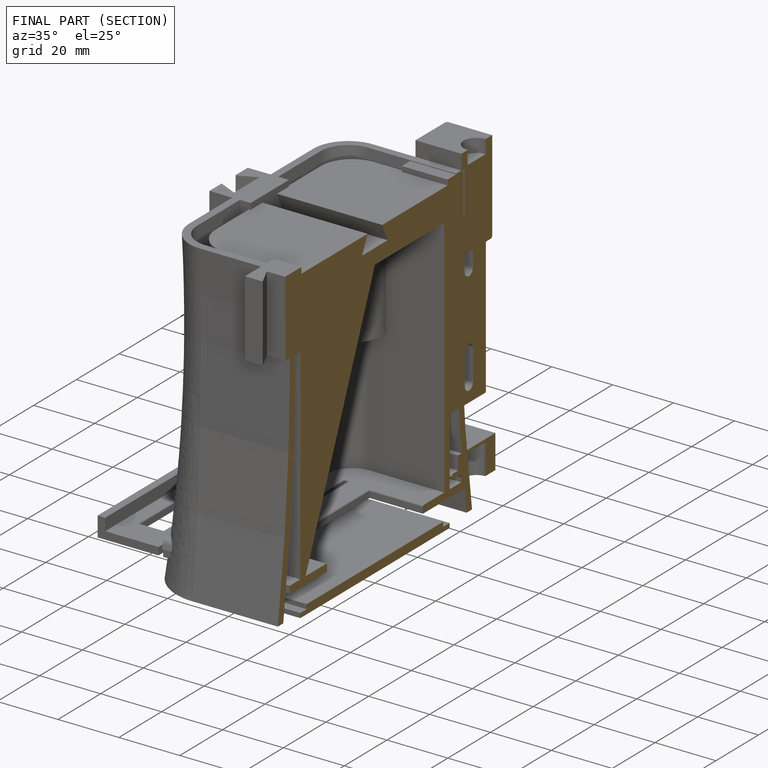
[diagram: finished part — half-section view (interior)]
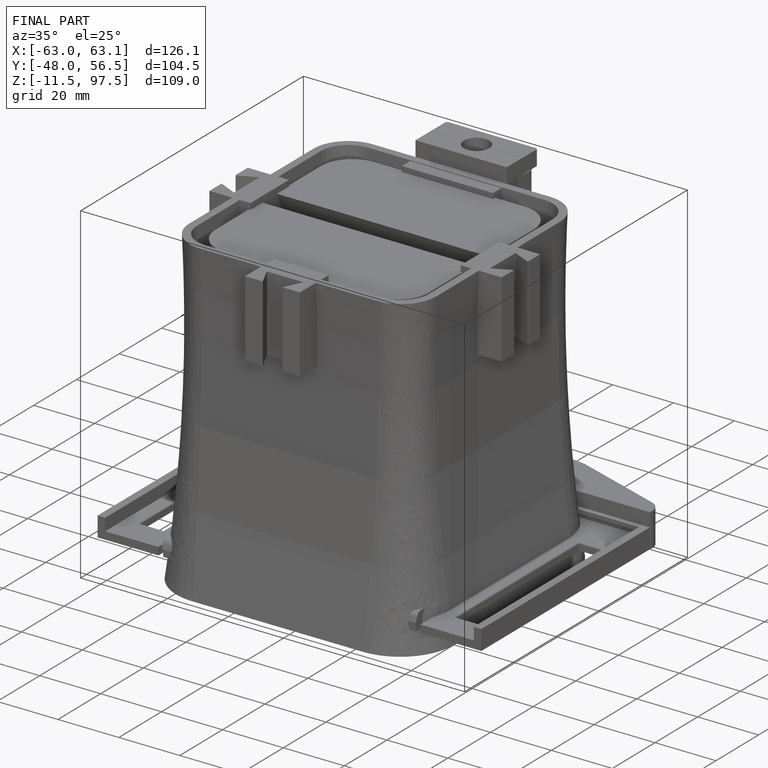
[diagram: finished part — iso view with bounding-box wireframe]
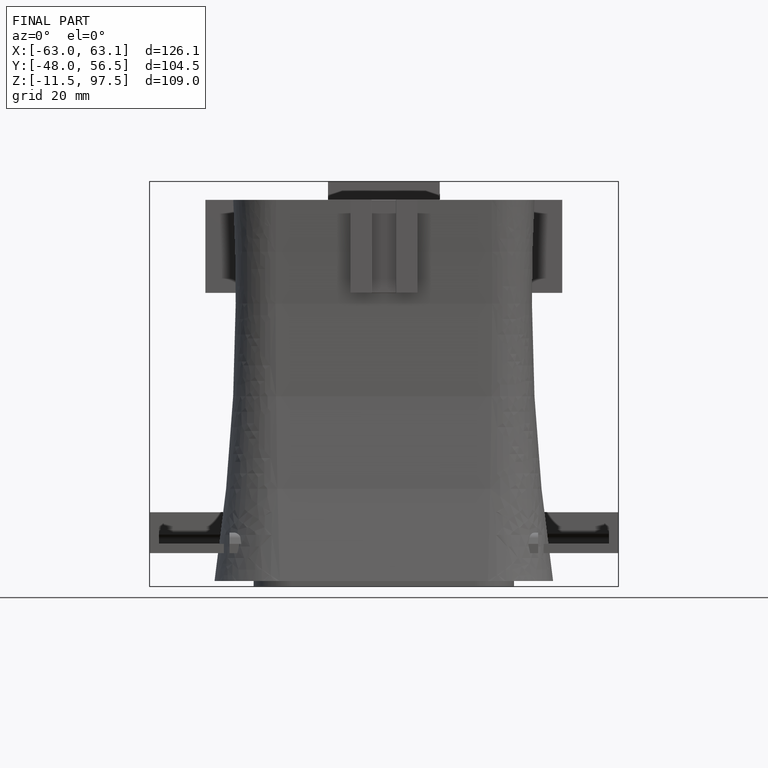
[diagram: finished part — front view with bounding-box wireframe]
